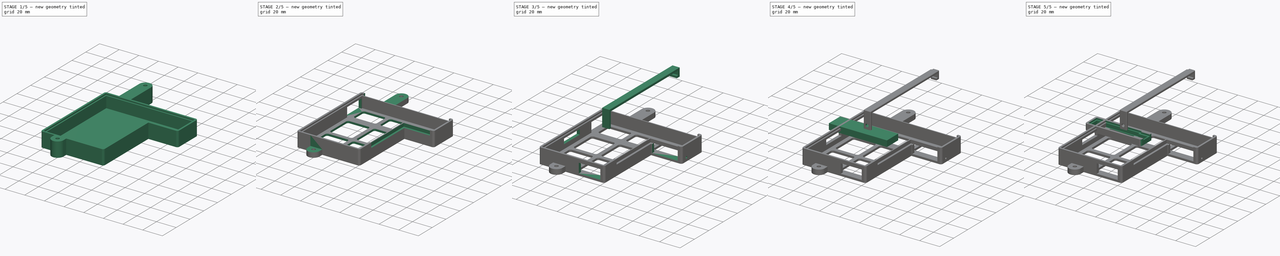
[diagram: build sequence overview — one tinted view per stage of 5, left to right]
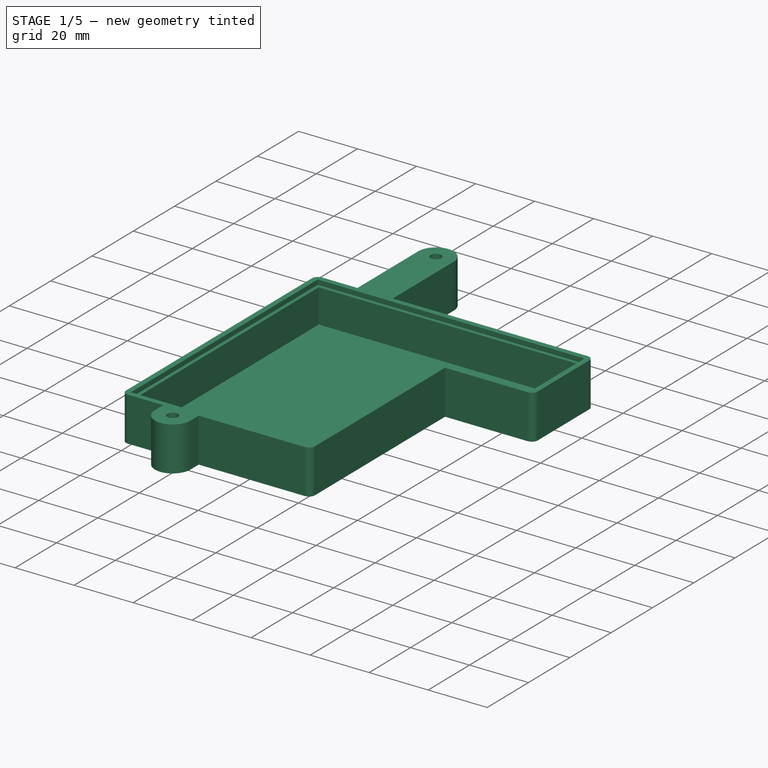
[diagram: stage 1 of 5 — iso view after this stage's code; geometry added in this stage tinted green]
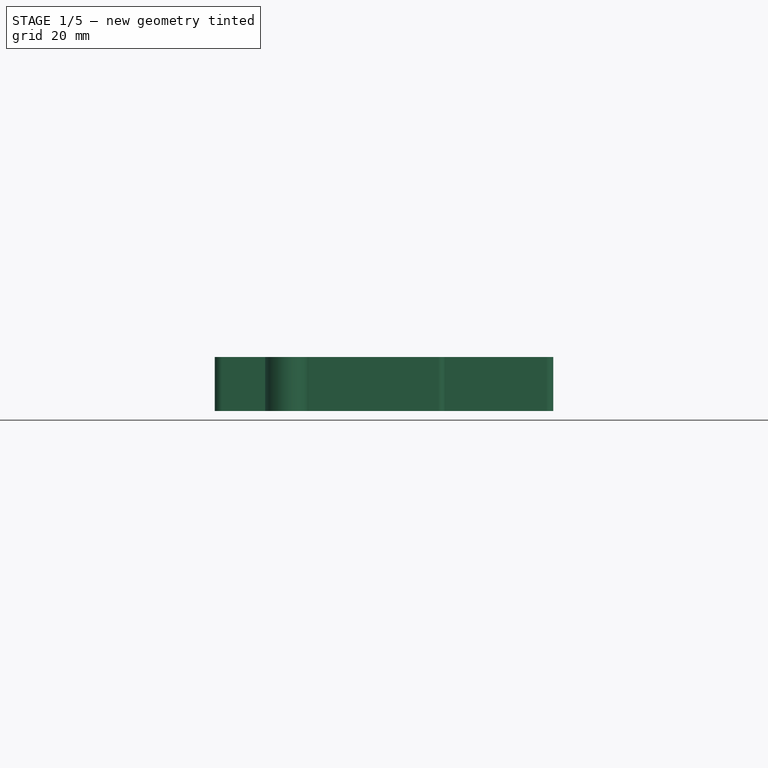
[diagram: stage 1 of 5 — front view after this stage's code; geometry added in this stage tinted green]
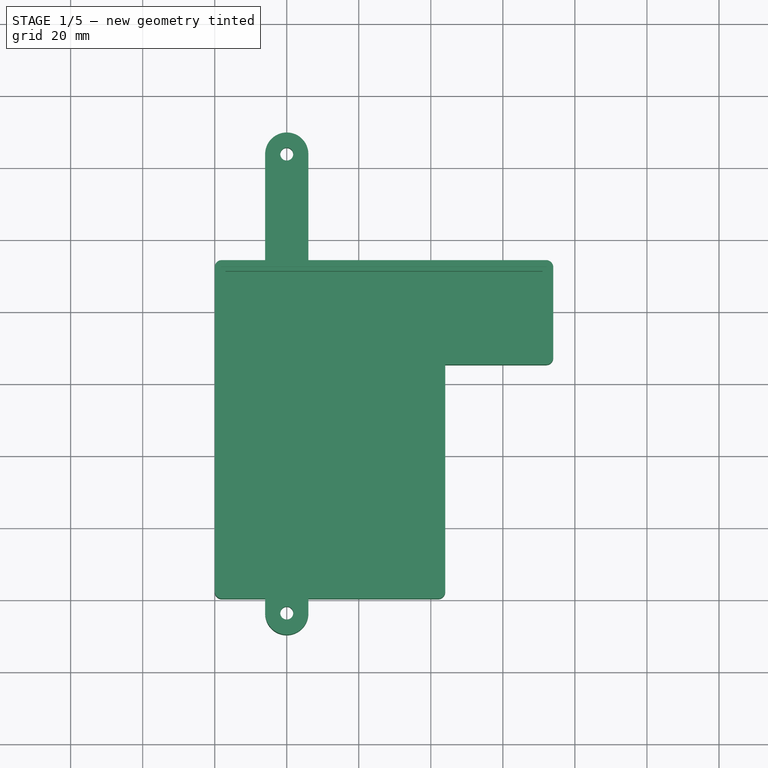
[diagram: stage 1 of 5 — top view after this stage's code; geometry added in this stage tinted green]
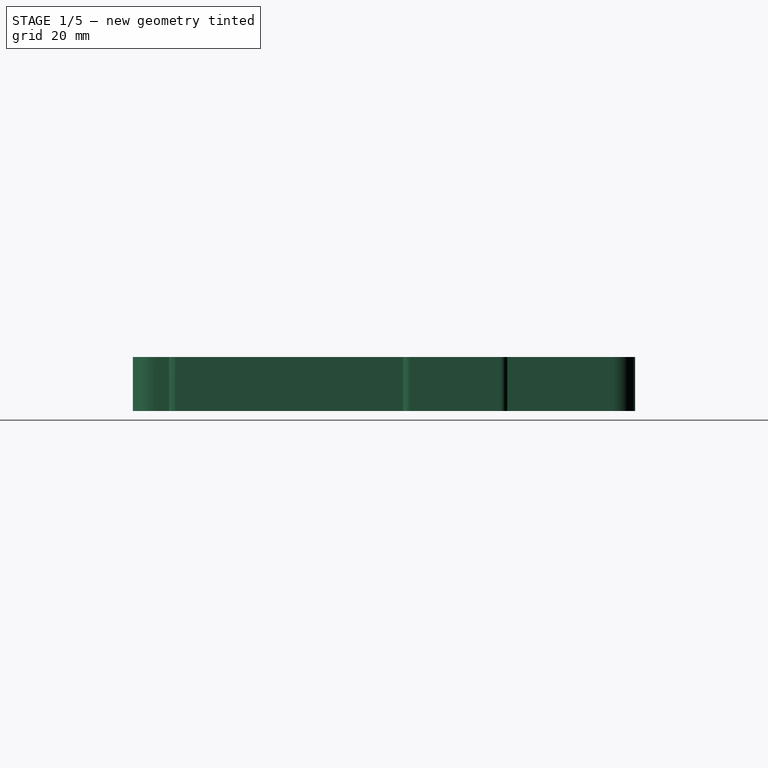
[diagram: stage 1 of 5 — right view after this stage's code; geometry added in this stage tinted green]
FCSTD DOCUMENT  (FreeCAD 1.0R38806 (Git))
Label: AuxPower1U PCBs
License: All rights reserved
LicenseURL: https://en.wikipedia.org/wiki/All_rights_reserved
objects: Sketcher::SketchObject×20, PartDesign::Pocket×17, PartDesign::Pad×3, PartDesign::Fillet×3, PartDesign::Body×3
note: 112 computed .brp shape members not serialized (recipe doc carries the construction recipe); baked Part::Feature solids carry a one-line shape summary decoded from their .brp

FEATURE [Sketcher::SketchObject] Sketch004  label="MainControllerBoxSketch"
  ArcFitTolerance = 1e-06
  AttachmentSupport = -> [XY_Plane001]
  FullyConstrained = true
  MakeInternals = false
  MapMode = 5
  sketch-geometry (25):
    g0: LineSegment StartX=-20 StartY=34.2841 StartZ=0 EndX=-20 EndY=-59.7159 EndZ=0
    g1: LineSegment [constr] StartX=-20 StartY=34.2841 StartZ=0 EndX=74 EndY=34.2841 EndZ=0
    g2: LineSegment [constr] StartX=-20 StartY=-59.7159 StartZ=0 EndX=44 EndY=-59.7159 EndZ=0
    g3: LineSegment StartX=74 StartY=34.2841 StartZ=0 EndX=74 EndY=5.2841 EndZ=0
    g4: LineSegment StartX=44 StartY=-59.7159 StartZ=0 EndX=44 EndY=5.2841 EndZ=0
    g5: LineSegment StartX=44 StartY=5.2841 StartZ=0 EndX=74 EndY=5.2841 EndZ=0
    g6: LineSegment [constr] StartX=0 StartY=63.7159 StartZ=0 EndX=0 EndY=-63.7159 EndZ=0
    g7: LineSegment [constr] StartX=0 StartY=-63.7159 StartZ=0 EndX=-6 EndY=-63.7159 EndZ=0
    g8: LineSegment StartX=-6 StartY=-63.7159 StartZ=0 EndX=-6 EndY=-59.7159 EndZ=0
    g9: Circle CenterX=0 CenterY=-63.7159 CenterZ=0 NormalX=0 NormalY=0 NormalZ=1 AngleXU=0 Radius=1.8
    g10: LineSegment [constr] StartX=0 StartY=-63.7159 StartZ=0 EndX=6 EndY=-63.7159 EndZ=0
    g11: ArcOfCircle CenterX=-1.52933e-11 CenterY=-63.7159 CenterZ=0 NormalX=0 NormalY=0 NormalZ=1 AngleXU=0 Radius=6 StartAngle=3.14159 EndAngle=6.28319
    g12: LineSegment StartX=6 StartY=-63.7159 StartZ=0 EndX=6 EndY=-59.7159 EndZ=0
    g13: LineSegment [constr] StartX=0 StartY=63.7159 StartZ=0 EndX=-6 EndY=63.7159 EndZ=0
    g14: LineSegment [constr] StartX=0 StartY=63.7159 StartZ=0 EndX=6 EndY=63.7159 EndZ=0
    g15: Circle CenterX=0 CenterY=63.7159 CenterZ=0 NormalX=0 NormalY=0 NormalZ=1 AngleXU=0 Radius=1.8
    g16: ArcOfCircle CenterX=3e-16 CenterY=63.7159 CenterZ=0 NormalX=0 NormalY=0 NormalZ=1 AngleXU=0 Radius=6 StartAngle=1e-16 EndAngle=3.14159
    g17: LineSegment [constr] StartX=-1.52933e-11 StartY=-63.7159 StartZ=0 EndX=0 EndY=-59.7159 EndZ=0
    g18: LineSegment [constr] StartX=0 StartY=-59.7159 StartZ=0 EndX=-20 EndY=-59.7159 EndZ=0
    g19: LineSegment StartX=-20 StartY=-59.7159 StartZ=0 EndX=-6 EndY=-59.7159 EndZ=0
    g20: LineSegment StartX=6 StartY=-59.7159 StartZ=0 EndX=44 EndY=-59.7159 EndZ=0
    g21: LineSegment StartX=-6 StartY=63.7159 StartZ=0 EndX=-6 EndY=34.2841 EndZ=0
    g22: LineSegment StartX=6 StartY=63.7159 StartZ=0 EndX=6 EndY=34.2841 EndZ=0
    g23: LineSegment StartX=-6 StartY=34.2841 StartZ=0 EndX=-20 EndY=34.2841 EndZ=0
    g24: LineSegment StartX=6 StartY=34.2841 StartZ=0 EndX=74 EndY=34.2841 EndZ=0
  constraints (68):
    c: Distance(g0) = 94
    c: Distance(g1) = 94
    c: Coincident(g1,g0)
    c: Distance(g2) = 64
    c: Coincident(g0,g2)
    c: Horizontal(g2,g0)
    c: Distance(g3) = 29
    c: Coincident(g3,g1)
    c: Vertical(g3,g1)
    c: Coincident(g4,g2)
    c: Coincident(g5,g4)
    c: Coincident(g5,g3)
    c: Horizontal(g4,g3)
    c: Vertical(g4,g2)
    c: DistanceY(g6,g6) = 127.432
    c: Coincident(g7,g6)
    c: Horizontal(g7)
    c: Coincident(g8,g7)
    c: Vertical(g8)
    c: Symmetric(g6,g6,g-1)
    c: Vertical(g6)
    c: Vertical(g0)
    c: Diameter(g9) = 3.6
    c: Coincident(g9,g6)
    c: Coincident(g10,g6)
    c: Horizontal(g10)
    c: DistanceX(g7,g7) = 6
    c: Equal(g10,g7)
    c: Coincident(g10,g11)
    c: Coincident(g11,g7)
    c: Horizontal(g11,g6)
    c: Coincident(g12,g10)
    c: Vertical(g12)
    c: Equal(g12,g8)
    c: Coincident(g13,g6)
    c: Horizontal(g13)
    c: Coincident(g14,g6)
    c: Horizontal(g14)
    c: Equal(g13,g14)
    c: Equal(g14,g7)
    c: Coincident(g15,g6)
    c: Equal(g15,g9)
    c: Coincident(g16,g14)
    c: Coincident(g13,g16)
    c: Horizontal(g16,g6)
    c: Coincident(g17,g11)
    c: PointOnObject(g17,g6)
    c: Equal(g17,g12)
    c: Distance(g18) = 20
    c: Coincident(g18,g17)
    c: Horizontal(g18)
    c: Horizontal(g1)
    c: Coincident(g0,g18)
    c: Coincident(g19,g0)
    c: Coincident(g19,g8)
    c: Coincident(g20,g12)
    c: Coincident(g20,g2)
    c: Coincident(g21,g13)
    c: Vertical(g21)
    c: Coincident(g22,g14)
    c: Vertical(g22)
    c: Equal(g22,g21)
    c: Horizontal(g21,g0)
    c: Coincident(g23,g21)
    c: Coincident(g23,g0)
    c: Coincident(g24,g22)
    c: Coincident(g24,g1)
    c: DistanceY(g8,g8) = 4
FEATURE [Sketcher::SketchObject] Sketch003  label="MainControllerPCBSketch"
  ArcFitTolerance = 1e-06
  AttachmentSupport = -> [XY_Plane001]
  ExternalGeometry = -> [Sketch004]
  FullyConstrained = true
  MakeInternals = false
  MapMode = 5
  sketch-geometry (8):
    g0: LineSegment StartX=-18.2 StartY=32.4841 StartZ=0 EndX=-18.2 EndY=-57.9159 EndZ=0
    g1: LineSegment StartX=-18.2 StartY=32.4841 StartZ=0 EndX=72.2 EndY=32.4841 EndZ=0
    g2: LineSegment StartX=72.2 StartY=32.4841 StartZ=0 EndX=72.2 EndY=7.2841 EndZ=0
    g3: LineSegment StartX=-18.2 StartY=-57.9159 StartZ=0 EndX=42.2 EndY=-57.9159 EndZ=0
    g4: LineSegment StartX=42.2 StartY=-57.9159 StartZ=0 EndX=42.2 EndY=7.2841 EndZ=0
    g5: LineSegment StartX=72.2 StartY=7.2841 StartZ=0 EndX=42.2 EndY=7.2841 EndZ=0
    g6: LineSegment [constr] StartX=-20 StartY=34.2841 StartZ=0 EndX=-18.2 EndY=32.4841 EndZ=0
    g7: LineSegment [constr] StartX=-18.2 StartY=-57.9159 StartZ=0 EndX=-20 EndY=-59.7159 EndZ=0
  constraints (22):
    c: Distance(g0) = 90.4
    c: Distance(g1) = 90.4
    c: Coincident(g0,g1)
    c: Distance(g2) = 25.2
    c: Coincident(g2,g1)
    c: Vertical(g2,g1)
    c: Distance(g3) = 60.4
    c: Coincident(g3,g0)
    c: Horizontal(g3,g0)
    c: Coincident(g4,g3)
    c: Coincident(g5,g2)
    c: Vertical(g5,g3)
    c: Coincident(g5,g4)
    c: Horizontal(g4,g2)
    c: Horizontal(g1)
    c: Vertical(g0)
    c: Coincident(g6,g-3)
    c: Coincident(g0,g6)
    c: Coincident(g7,g0)
    c: Coincident(g7,g-3)
    c: Angle(g6) = -0.785398
    c: Equal(g6,g7)
FEATURE [Sketcher::SketchObject] Sketch005  label="MainControllerEdgeSketch"
  ArcFitTolerance = 1e-06
  AttachmentSupport = -> [XY_Plane001]
  ExternalGeometry = -> [Sketch004]
  FullyConstrained = true
  MakeInternals = false
  MapMode = 5
  sketch-geometry (8):
    g0: LineSegment StartX=-17 StartY=31.2841 StartZ=0 EndX=-17 EndY=-56.7159 EndZ=0
    g1: LineSegment StartX=-17 StartY=31.2841 StartZ=0 EndX=71 EndY=31.2841 EndZ=0
    g2: LineSegment StartX=-17 StartY=-56.7159 StartZ=0 EndX=41 EndY=-56.7159 EndZ=0
    g3: LineSegment StartX=71 StartY=31.2841 StartZ=0 EndX=71 EndY=8.2841 EndZ=0
    g4: LineSegment StartX=41 StartY=-56.7159 StartZ=0 EndX=41 EndY=8.2841 EndZ=0
    g5: LineSegment StartX=71 StartY=8.2841 StartZ=0 EndX=41 EndY=8.2841 EndZ=0
    g6: LineSegment [constr] StartX=-20 StartY=34.2841 StartZ=0 EndX=-20 EndY=31.2841 EndZ=0
    g7: LineSegment [constr] StartX=-20 StartY=31.2841 StartZ=0 EndX=-17 EndY=31.2841 EndZ=0
  constraints (23):
    c: Distance(g0) = 88
    c: Distance(g1) = 88
    c: Coincident(g1,g0)
    c: Distance(g2) = 58
    c: Coincident(g2,g0)
    c: Horizontal(g2)
    c: Distance(g3) = 23
    c: Coincident(g3,g1)
    c: Vertical(g3)
    c: Coincident(g4,g2)
    c: Coincident(g5,g3)
    c: Coincident(g5,g4)
    c: Horizontal(g3,g4)
    c: Vertical(g2,g4)
    c: Vertical(g0)
    c: Horizontal(g1)
    c: Distance(g6) = 3
    c: Coincident(g6,g-3)
    c: Vertical(g6)
    c: Coincident(g7,g6)
    c: Horizontal(g7)
    c: Equal(g6,g7)
    c: Coincident(g0,g7)
FEATURE [PartDesign::Pad] Pad001  label="MainControllerBoxPad"
  Direction = (0,0,1)
  Length = 15
  Length2 = 10
  Profile = -> Sketch004
  ReferenceAxis = -> Sketch004 [N_Axis]
  Refine = true
  Reversed = true
  Suppressed = false
  Type = 0
FEATURE [PartDesign::Pocket] Pocket002  label="MainControllerEdgePocket"
  BaseFeature = -> Pad001
  Direction = (0,0,-1)
  Length = 13
  Length2 = 5
  Profile = -> Sketch005
  ReferenceAxis = -> Sketch005 [N_Axis]
  Refine = true
  Suppressed = false
  Type = 0
FEATURE [PartDesign::Pocket] Pocket003  label="MainControllerPCBPocket"
  BaseFeature = -> Pocket002
  Direction = (0,0,-1)
  Length = 1.6
  Length2 = 5
  Profile = -> Sketch003
  ReferenceAxis = -> Sketch003 [N_Axis]
  Refine = true
  Suppressed = false
  Type = 0
FEATURE [Sketcher::SketchObject] Sketch006  label="MainControllerHoleSketch"
  ArcFitTolerance = 1e-06
  AttachmentSupport = -> [Pocket003]
  ExternalGeometry = -> [Sketch004,Pocket003]
  FullyConstrained = true
  MakeInternals = false
  MapMode = 5
  Placement = pos=(0,0,-15) rot=(1,0,0;3.14159rad)
  sketch-geometry (2):
    g0: Circle CenterX=0 CenterY=-63.7159 CenterZ=0 NormalX=0 NormalY=0 NormalZ=1 AngleXU=0 Radius=4
    g1: Circle CenterX=0 CenterY=63.7159 CenterZ=0 NormalX=0 NormalY=0 NormalZ=1 AngleXU=0 Radius=4
  constraints (4):
    c: Diameter(g0) = 8
    c: Equal(g1,g0)
    c: Coincident(g0,g-3)
    c: Coincident(g1,g-4)
FEATURE [PartDesign::Pocket] Pocket004  label="MainControllerHolePocket"
  BaseFeature = -> Pocket003
  Direction = (0,0,1)
  Length = 4
  Length2 = 5
  Profile = -> Sketch006
  ReferenceAxis = -> Sketch006 [N_Axis]
  Refine = true
  Suppressed = false
  Type = 0
FEATURE [PartDesign::Fillet] Fillet001
  Base = -> Pocket004 [Edge44,Edge46,Edge49,Edge45,Edge43]
  BaseFeature = -> Pocket004
  Radius = 2
  Refine = true
  SupportTransform = false
  Suppressed = false
  UseAllEdges = false
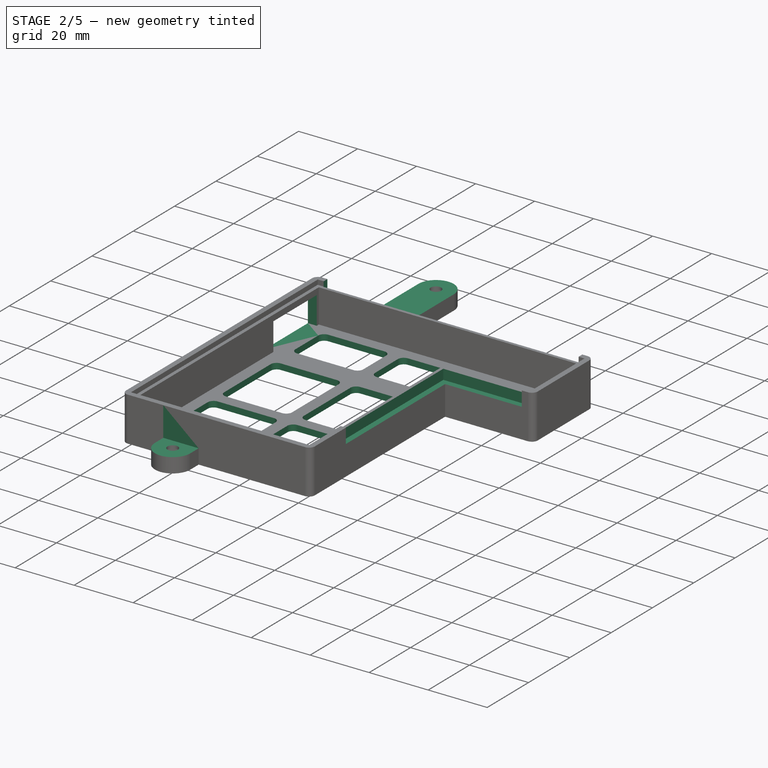
[diagram: stage 2 of 5 — iso view after this stage's code; geometry added in this stage tinted green]
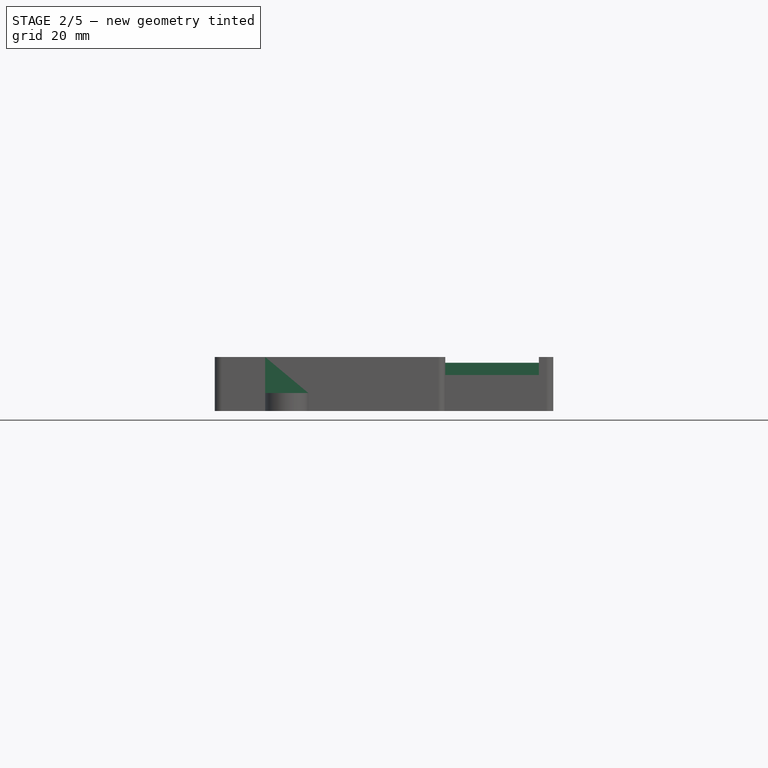
[diagram: stage 2 of 5 — front view after this stage's code; geometry added in this stage tinted green]
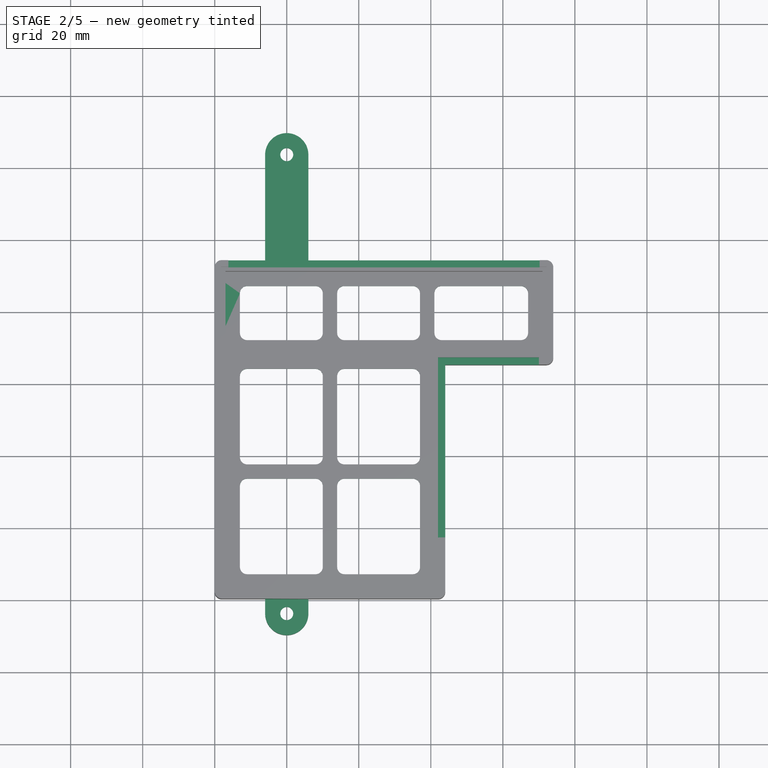
[diagram: stage 2 of 5 — top view after this stage's code; geometry added in this stage tinted green]
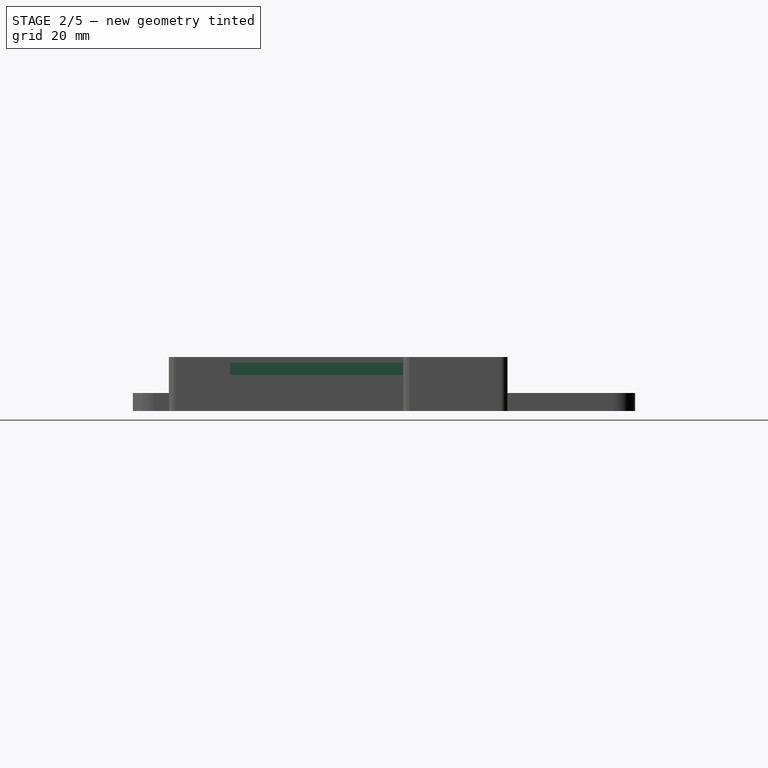
[diagram: stage 2 of 5 — right view after this stage's code; geometry added in this stage tinted green]
FEATURE [Sketcher::SketchObject] Sketch008  label="MainControllerFingerHoleSketch"
  ArcFitTolerance = 1e-06
  AttachmentSupport = -> [XY_Plane001]
  ExternalGeometry = -> [Fillet001]
  FullyConstrained = true
  MakeInternals = false
  MapMode = 5
  sketch-geometry (94):
    g0: LineSegment [constr] StartX=-17 StartY=-56.7159 StartZ=0 EndX=-13 EndY=-52.7159 EndZ=0
    g1: LineSegment [constr] StartX=41 StartY=-56.7159 StartZ=0 EndX=37 EndY=-52.7159 EndZ=0
    g2: LineSegment [constr] StartX=-17 StartY=31.2841 StartZ=0 EndX=-13 EndY=27.2841 EndZ=0
    g3: LineSegment [constr] StartX=41 StartY=8.2841 StartZ=0 EndX=37 EndY=12.2841 EndZ=0
    g4: LineSegment [constr] StartX=71 StartY=31.2841 StartZ=0 EndX=67 EndY=27.2841 EndZ=0
    g5: LineSegment [constr] StartX=71 StartY=8.2841 StartZ=0 EndX=67 EndY=12.2841 EndZ=0
    g6: LineSegment StartX=67 StartY=14.2841 StartZ=0 EndX=67 EndY=25.2841 EndZ=0
    g7: LineSegment StartX=-13 StartY=25.2841 StartZ=0 EndX=-13 EndY=14.2841 EndZ=0
    g8: LineSegment [constr] StartX=41 StartY=8.2841 StartZ=0 EndX=37 EndY=4.2841 EndZ=0
    g9: LineSegment StartX=-11 StartY=-52.7159 StartZ=0 EndX=8 EndY=-52.7159 EndZ=0
    g10: LineSegment StartX=35 StartY=-52.7159 StartZ=0 EndX=16 EndY=-52.7159 EndZ=0
    g11: LineSegment [constr] StartX=10 StartY=-52.7159 StartZ=0 EndX=14 EndY=-52.7159 EndZ=0
    g12: LineSegment StartX=-11 StartY=4.2841 StartZ=0 EndX=8 EndY=4.2841 EndZ=0
    g13: LineSegment StartX=35 StartY=4.2841 StartZ=0 EndX=16 EndY=4.2841 EndZ=0
    g14: LineSegment StartX=-11 StartY=12.2841 StartZ=0 EndX=8 EndY=12.2841 EndZ=0
    g15: LineSegment StartX=-11 StartY=27.2841 StartZ=0 EndX=8 EndY=27.2841 EndZ=0
    g16: LineSegment StartX=10 StartY=25.2841 StartZ=0 EndX=10 EndY=14.2841 EndZ=0
    g17: LineSegment StartX=35 StartY=12.2841 StartZ=0 EndX=16 EndY=12.2841 EndZ=0
    g18: LineSegment StartX=14 StartY=14.2841 StartZ=0 EndX=14 EndY=25.2841 EndZ=0
    g19: LineSegment StartX=16 StartY=27.2841 StartZ=0 EndX=35 EndY=27.2841 EndZ=0
    g20: LineSegment StartX=37 StartY=25.2841 StartZ=0 EndX=37 EndY=14.2841 EndZ=0
    g21: LineSegment [constr] StartX=37 StartY=27.2841 StartZ=0 EndX=41 EndY=27.2841 EndZ=0
    g22: LineSegment StartX=43 StartY=27.2841 StartZ=0 EndX=65 EndY=27.2841 EndZ=0
    g23: LineSegment StartX=65 StartY=12.2841 StartZ=0 EndX=43 EndY=12.2841 EndZ=0
    g24: LineSegment StartX=-13 StartY=2.2841 StartZ=0 EndX=-13 EndY=-20.2159 EndZ=0
    g25: LineSegment StartX=-13 StartY=-50.7159 StartZ=0 EndX=-13 EndY=-28.2159 EndZ=0
    g26: LineSegment [constr] StartX=-13 StartY=-22.2159 StartZ=0 EndX=-13 EndY=-26.2159 EndZ=0
    g27: LineSegment StartX=-11 StartY=-22.2159 StartZ=0 EndX=8 EndY=-22.2159 EndZ=0
    g28: LineSegment StartX=10 StartY=-20.2159 StartZ=0 EndX=10 EndY=2.2841 EndZ=0
    g29: LineSegment StartX=14 StartY=2.2841 StartZ=0 EndX=14 EndY=-20.2159 EndZ=0
    g30: LineSegment StartX=16 StartY=-22.2159 StartZ=0 EndX=35 EndY=-22.2159 EndZ=0
    g31: LineSegment StartX=37 StartY=2.2841 StartZ=0 EndX=37 EndY=-20.2159 EndZ=0
    g32: LineSegment StartX=37 StartY=-50.7159 StartZ=0 EndX=37 EndY=-28.2159 EndZ=0
    g33: LineSegment StartX=35 StartY=-26.2159 StartZ=0 EndX=16 EndY=-26.2159 EndZ=0
    g34: LineSegment StartX=14 StartY=-28.2159 StartZ=0 EndX=14 EndY=-50.7159 EndZ=0
    g35: LineSegment StartX=10 StartY=-50.7159 StartZ=0 EndX=10 EndY=-28.2159 EndZ=0
    g36: LineSegment StartX=8 StartY=-26.2159 StartZ=0 EndX=-11 EndY=-26.2159 EndZ=0
    g37: LineSegment StartX=41 StartY=25.2841 StartZ=0 EndX=41 EndY=14.2841 EndZ=0
    g38: ArcOfCircle CenterX=-11 CenterY=25.2841 CenterZ=0 NormalX=0 NormalY=0 NormalZ=1 AngleXU=0 Radius=2 StartAngle=1.5708 EndAngle=3.14159
    g39: GeomPoint [constr] X=-13 Y=27.2841 Z=0
    g40: ArcOfCircle CenterX=-11 CenterY=14.2841 CenterZ=0 NormalX=0 NormalY=0 NormalZ=1 AngleXU=0 Radius=2 StartAngle=3.14159 EndAngle=4.71239
    g41: GeomPoint [constr] X=-13 Y=12.2841 Z=0
    g42: ArcOfCircle CenterX=8 CenterY=14.2841 CenterZ=0 NormalX=0 NormalY=0 NormalZ=1 AngleXU=0 Radius=2 StartAngle=4.71239 EndAngle=6.28319
    g43: GeomPoint [constr] X=10 Y=12.2841 Z=0
    g44: ArcOfCircle CenterX=8 CenterY=25.2841 CenterZ=0 NormalX=0 NormalY=0 NormalZ=1 AngleXU=0 Radius=2 StartAngle=0 EndAngle=1.5708
    g45: GeomPoint [constr] X=10 Y=27.2841 Z=0
    g46: ArcOfCircle CenterX=16 CenterY=25.2841 CenterZ=0 NormalX=0 NormalY=0 NormalZ=1 AngleXU=0 Radius=2 StartAngle=1.5708 EndAngle=3.14159
    g47: GeomPoint [constr] X=14 Y=27.2841 Z=0
    g48: ArcOfCircle CenterX=16 CenterY=14.2841 CenterZ=0 NormalX=0 NormalY=0 NormalZ=1 AngleXU=0 Radius=2 StartAngle=3.14159 EndAngle=4.71239
    g49: GeomPoint [constr] X=14 Y=12.2841 Z=0
    g50: ArcOfCircle CenterX=35 CenterY=14.2841 CenterZ=0 NormalX=0 NormalY=0 NormalZ=1 AngleXU=0 Radius=2 StartAngle=4.71239 EndAngle=6.28319
    g51: GeomPoint [constr] X=37 Y=12.2841 Z=0
    g52: ArcOfCircle CenterX=35 CenterY=25.2841 CenterZ=0 NormalX=0 NormalY=0 NormalZ=1 AngleXU=0 Radius=2 StartAngle=0 EndAngle=1.5708
    g53: GeomPoint [constr] X=37 Y=27.2841 Z=0
    g54: ArcOfCircle CenterX=43 CenterY=25.2841 CenterZ=0 NormalX=0 NormalY=0 NormalZ=1 AngleXU=0 Radius=2 StartAngle=1.5708 EndAngle=3.14159
    g55: GeomPoint [constr] X=41 Y=27.2841 Z=0
    g56: ArcOfCircle CenterX=65 CenterY=25.2841 CenterZ=0 NormalX=0 NormalY=0 NormalZ=1 AngleXU=0 Radius=2 StartAngle=4e-16 EndAngle=1.5708
    g57: GeomPoint [constr] X=67 Y=27.2841 Z=0
    g58: ArcOfCircle CenterX=65 CenterY=14.2841 CenterZ=0 NormalX=0 NormalY=0 NormalZ=1 AngleXU=0 Radius=2 StartAngle=4.71239 EndAngle=6.28319
    g59: GeomPoint [constr] X=67 Y=12.2841 Z=0
    g60: ArcOfCircle CenterX=43 CenterY=14.2841 CenterZ=0 NormalX=0 NormalY=0 NormalZ=1 AngleXU=0 Radius=2 StartAngle=3.14159 EndAngle=4.71239
    g61: GeomPoint [constr] X=41 Y=12.2841 Z=0
    g62: ArcOfCircle CenterX=35 CenterY=2.2841 CenterZ=0 NormalX=0 NormalY=0 NormalZ=1 AngleXU=0 Radius=2 StartAngle=0 EndAngle=1.5708
    g63: GeomPoint [constr] X=37 Y=4.2841 Z=0
    g64: ArcOfCircle CenterX=35 CenterY=-20.2159 CenterZ=0 NormalX=0 NormalY=0 NormalZ=1 AngleXU=0 Radius=2 StartAngle=4.71239 EndAngle=6.28319
    g65: GeomPoint [constr] X=37 Y=-22.2159 Z=0
    g66: ArcOfCircle CenterX=16 CenterY=-20.2159 CenterZ=0 NormalX=0 NormalY=0 NormalZ=1 AngleXU=0 Radius=2 StartAngle=3.14159 EndAngle=4.71239
    g67: GeomPoint [constr] X=14 Y=-22.2159 Z=0
    g68: ArcOfCircle CenterX=16 CenterY=2.2841 CenterZ=0 NormalX=0 NormalY=0 NormalZ=1 AngleXU=0 Radius=2 StartAngle=1.5708 EndAngle=3.14159
    g69: GeomPoint [constr] X=14 Y=4.2841 Z=0
    g70: ArcOfCircle CenterX=8 CenterY=2.2841 CenterZ=0 NormalX=0 NormalY=0 NormalZ=1 AngleXU=0 Radius=2 StartAngle=0 EndAngle=1.5708
    g71: GeomPoint [constr] X=10 Y=4.2841 Z=0
    g72: ArcOfCircle CenterX=-11 CenterY=2.2841 CenterZ=0 NormalX=0 NormalY=0 NormalZ=1 AngleXU=0 Radius=2 StartAngle=1.5708 EndAngle=3.14159
    g73: GeomPoint [constr] X=-13 Y=4.2841 Z=0
    g74: ArcOfCircle CenterX=-11 CenterY=-20.2159 CenterZ=0 NormalX=0 NormalY=0 NormalZ=1 AngleXU=0 Radius=2 StartAngle=3.14159 EndAngle=4.71239
    g75: GeomPoint [constr] X=-13 Y=-22.2159 Z=0
    g76: ArcOfCircle CenterX=8 CenterY=-20.2159 CenterZ=0 NormalX=0 NormalY=0 NormalZ=1 AngleXU=0 Radius=2 StartAngle=4.71239 EndAngle=6.28319
    g77: GeomPoint [constr] X=10 Y=-22.2159 Z=0
    g78: ArcOfCircle CenterX=8 CenterY=-28.2159 CenterZ=0 NormalX=0 NormalY=0 NormalZ=1 AngleXU=0 Radius=2 StartAngle=0 EndAngle=1.5708
    g79: GeomPoint [constr] X=10 Y=-26.2159 Z=0
    g80: ArcOfCircle CenterX=-11 CenterY=-28.2159 CenterZ=0 NormalX=0 NormalY=0 NormalZ=1 AngleXU=0 Radius=2 StartAngle=1.5708 EndAngle=3.14159
    g81: GeomPoint [constr] X=-13 Y=-26.2159 Z=0
    g82: ArcOfCircle CenterX=-11 CenterY=-50.7159 CenterZ=0 NormalX=0 NormalY=0 NormalZ=1 AngleXU=0 Radius=2 StartAngle=3.14159 EndAngle=4.71239
    g83: GeomPoint [constr] X=-13 Y=-52.7159 Z=0
    g84: ArcOfCircle CenterX=8 CenterY=-50.7159 CenterZ=0 NormalX=0 NormalY=0 NormalZ=1 AngleXU=0 Radius=2 StartAngle=4.71239 EndAngle=6.28319
    g85: GeomPoint [constr] X=10 Y=-52.7159 Z=0
    g86: ArcOfCircle CenterX=16 CenterY=-50.7159 CenterZ=0 NormalX=0 NormalY=0 NormalZ=1 AngleXU=0 Radius=2 StartAngle=3.14159 EndAngle=4.71239
    g87: GeomPoint [constr] X=14 Y=-52.7159 Z=0
    g88: ArcOfCircle CenterX=35 CenterY=-50.7159 CenterZ=0 NormalX=0 NormalY=0 NormalZ=1 AngleXU=0 Radius=2 StartAngle=4.71239 EndAngle=6.28319
    g89: GeomPoint [constr] X=37 Y=-52.7159 Z=0
    g90: ArcOfCircle CenterX=35 CenterY=-28.2159 CenterZ=0 NormalX=0 NormalY=0 NormalZ=1 AngleXU=0 Radius=2 StartAngle=3e-16 EndAngle=1.5708
    g91: GeomPoint [constr] X=37 Y=-26.2159 Z=0
    g92: ArcOfCircle CenterX=16 CenterY=-28.2159 CenterZ=0 NormalX=0 NormalY=0 NormalZ=1 AngleXU=0 Radius=2 StartAngle=1.5708 EndAngle=3.14159
    g93: GeomPoint [constr] X=14 Y=-26.2159 Z=0
  constraints (217):
    c: Coincident(g0,g-5)
    c: Coincident(g1,g-4)
    c: Coincident(g2,g-5)
    c: Equal(g0,g1)
    c: Equal(g2,g0)
    c: Coincident(g3,g-6)
    c: Coincident(g4,g-8)
    c: Coincident(g5,g-7)
    c: Equal(g5,g2)
    c: Equal(g3,g2)
    c: Equal(g4,g2)
    c: Horizontal(g5,g3)
    c: Vertical(g5,g4)
    c: Horizontal(g4,g2)
    c: Vertical(g1,g3)
    c: Vertical(g0,g2)
    c: Angle(g0) = 0.785398
    c: DistanceX(g0,g0) = 4
    c: Coincident(g59,g5)
    c: Coincident(g57,g4)
    c: Vertical(g41,g2)
    c: Coincident(g39,g2)
    c: Coincident(g8,g3)
    c: Vertical(g8,g3)
    c: Equal(g3,g8)
    c: Vertical(g73,g41)
    c: Coincident(g83,g0)
    c: Coincident(g89,g1)
    c: Horizontal(g87,g85)
    c: Horizontal(g85,g0)
    c: Coincident(g11,g85)
    c: Coincident(g11,g87)
    c: DistanceX(g11,g11) = 4
    c: Coincident(g63,g8)
    c: Vertical(g69,g87)
    c: Horizontal(g69,g71)
    c: Vertical(g71,g85)
    c: Horizontal(g71,g73)
    c: Horizontal(g14)
    c: Horizontal(g41,g3)
    c: Vertical(g43,g71)
    c: Horizontal(g15)
    c: Vertical(g45,g43)
    c: Coincident(g51,g3)
    c: Horizontal(g17)
    c: Vertical(g18)
    c: Vertical(g53,g3)
    c: Vertical(g69,g49)
    c: Horizontal(g47,g45)
    c: Horizontal(g53,g47)
    c: Coincident(g21,g53)
    c: Equal(g21,g11)
    c: Horizontal(g22)
    c: Horizontal(g23)
    c: Coincident(g26,g75)
    c: Coincident(g26,g81)
    c: Equal(g26,g11)
    c: Vertical(g81,g0)
    c: Vertical(g73,g75)
    c: Vertical(g28)
    c: Horizontal(g30)
    c: Vertical(g32)
    c: Vertical(g34)
    c: Horizontal(g81,g79)
    c: Horizontal(g79,g93)
    c: Horizontal(g93,g91)
    c: Horizontal(g77,g75)
    c: Horizontal(g67,g77)
    c: Vertical(g67,g93)
    c: Vertical(g65,g91)
    c: Vertical(g79,g77)
    c: Vertical(g55,g21)
    c: Vertical(g61,g55)
    c: Horizontal(g21,g55)
    c: PointOnObject(g39,g15)
    c: PointOnObject(g39,g7)
    c: Tangent(g15,g38) = 1.5708
    c: Tangent(g7,g38) = -1.5708
    c: PointOnObject(g41,g14)
    c: PointOnObject(g41,g7)
    c: Tangent(g14,g40) = -1.5708
    c: Tangent(g7,g40) = -1.5708
    c: PointOnObject(g43,g16)
    c: PointOnObject(g43,g14)
    c: Tangent(g16,g42) = 1.5708
    c: Tangent(g14,g42) = -1.5708
    c: PointOnObject(g45,g15)
    c: PointOnObject(g45,g16)
    c: Tangent(g15,g44) = 1.5708
    c: Tangent(g16,g44) = 1.5708
    c: PointOnObject(g47,g19)
    c: PointOnObject(g47,g18)
    c: Tangent(g19,g46) = 1.5708
    c: Tangent(g18,g46) = 1.5708
    c: PointOnObject(g49,g17)
    c: PointOnObject(g49,g18)
    c: Tangent(g17,g48) = 1.5708
    c: Tangent(g18,g48) = 1.5708
    c: PointOnObject(g51,g20)
    c: PointOnObject(g51,g17)
    c: Tangent(g20,g50) = 1.5708
    c: Tangent(g17,g50) = 1.5708
    c: PointOnObject(g53,g19)
    c: PointOnObject(g53,g20)
    c: Tangent(g19,g52) = 1.5708
    c: Tangent(g20,g52) = 1.5708
    c: PointOnObject(g55,g37)
    c: PointOnObject(g55,g22)
    c: Tangent(g37,g54) = -1.5708
    c: Tangent(g22,g54) = 1.5708
    c: PointOnObject(g57,g22)
    c: PointOnObject(g57,g6)
    c: Tangent(g22,g56) = 1.5708
    c: Tangent(g6,g56) = -1.5708
    c: PointOnObject(g59,g6)
    c: PointOnObject(g59,g23)
    c: Tangent(g6,g58) = -1.5708
    c: Tangent(g23,g58) = 1.5708
    c: PointOnObject(g61,g23)
    c: PointOnObject(g61,g37)
    c: Tangent(g23,g60) = 1.5708
    c: Tangent(g37,g60) = -1.5708
    c: PointOnObject(g63,g31)
    c: PointOnObject(g63,g13)
    c: Tangent(g31,g62) = 1.5708
    c: Tangent(g13,g62) = -1.5708
    c: PointOnObject(g65,g31)
    c: PointOnObject(g65,g30)
    c: Tangent(g31,g64) = 1.5708
    c: Tangent(g30,g64) = -1.5708
    c: PointOnObject(g67,g29)
    c: PointOnObject(g67,g30)
    c: Tangent(g29,g66) = -1.5708
    c: Tangent(g30,g66) = -1.5708
    c: PointOnObject(g69,g13)
    c: PointOnObject(g69,g29)
    c: Tangent(g13,g68) = -1.5708
    c: Tangent(g29,g68) = -1.5708
    c: PointOnObject(g71,g28)
    c: PointOnObject(g71,g12)
    c: Tangent(g28,g70) = -1.5708
    c: Tangent(g12,g70) = 1.5708
    c: PointOnObject(g73,g12)
    c: PointOnObject(g73,g24)
    c: Tangent(g12,g72) = 1.5708
    c: Tangent(g24,g72) = -1.5708
    c: PointOnObject(g75,g27)
    c: PointOnObject(g75,g24)
    c: Tangent(g27,g74) = -1.5708
    c: Tangent(g24,g74) = -1.5708
    c: PointOnObject(g77,g28)
    c: PointOnObject(g77,g27)
    c: Tangent(g28,g76) = -1.5708
    c: Tangent(g27,g76) = -1.5708
    c: PointOnObject(g79,g35)
    c: PointOnObject(g79,g36)
    c: Tangent(g35,g78) = -1.5708
    c: Tangent(g36,g78) = -1.5708
    c: PointOnObject(g81,g36)
    c: PointOnObject(g81,g25)
    c: Tangent(g36,g80) = -1.5708
    c: Tangent(g25,g80) = 1.5708
    c: PointOnObject(g83,g9)
    c: PointOnObject(g83,g25)
    c: Tangent(g9,g82) = -1.5708
    c: Tangent(g25,g82) = 1.5708
    c: PointOnObject(g85,g9)
    c: PointOnObject(g85,g35)
    c: Tangent(g9,g84) = -1.5708
    c: Tangent(g35,g84) = -1.5708
    c: PointOnObject(g87,g34)
    c: PointOnObject(g87,g10)
    c: Tangent(g34,g86) = -1.5708
    c: Tangent(g10,g86) = 1.5708
    c: PointOnObject(g89,g32)
    c: PointOnObject(g89,g10)
    c: Tangent(g32,g88) = -1.5708
    c: Tangent(g10,g88) = 1.5708
    c: PointOnObject(g91,g32)
    c: PointOnObject(g91,g33)
    c: Tangent(g32,g90) = -1.5708
    c: Tangent(g33,g90) = -1.5708
    c: Radius(g82) = 2
    c: Equal(g84,g82)
    c: Equal(g84,g86)
    c: Equal(g88,g86)
    c: Equal(g9,g10)
    c: Equal(g24,g25)
    c: Equal(g80,g82)
    c: Equal(g80,g74)
    c: Equal(g76,g78)
    c: Equal(g78,g80)
    c: Equal(g66,g76)
    c: Equal(g66,g90)
    c: Equal(g90,g64)
    c: PointOnObject(g93,g33)
    c: PointOnObject(g93,g34)
    c: Tangent(g33,g92) = -1.5708
    c: Tangent(g34,g92) = -1.5708
    c: Equal(g92,g78)
    c: Equal(g72,g74)
    c: Equal(g72,g70)
    c: Equal(g70,g68)
    c: Equal(g68,g62)
    c: Equal(g72,g40)
    c: Equal(g40,g38)
    c: Equal(g38,g44)
    c: Equal(g44,g42)
    c: Equal(g48,g46)
    c: Equal(g46,g52)
    c: Equal(g52,g50)
    c: Equal(g50,g68)
    c: Equal(g60,g54)
    c: Equal(g54,g52)
    c: Equal(g52,g56)
    c: Equal(g56,g58)
    c: Horizontal(g13,g13)
FEATURE [PartDesign::Pocket] Pocket006  label="MainControllerFingerHolePocket"
  BaseFeature = -> Fillet001
  Direction = (0,0,-1)
  Length = 5
  Length2 = 5
  Profile = -> Sketch008
  ReferenceAxis = -> Sketch008 [N_Axis]
  Refine = true
  Suppressed = false
  Type = 1
FEATURE [Sketcher::SketchObject] Sketch009  label="BossReductionSketch"
  ArcFitTolerance = 1e-06
  AttachmentSupport = -> [XY_Plane001]
  ExternalGeometry = -> [Sketch004]
  FullyConstrained = true
  MakeInternals = false
  MapMode = 5
  sketch-geometry (8):
    g0: LineSegment StartX=-6 StartY=-63.7159 StartZ=0 EndX=-6 EndY=-59.7159 EndZ=0
    g1: LineSegment StartX=6 StartY=-63.7159 StartZ=0 EndX=6 EndY=-59.7159 EndZ=0
    g2: ArcOfCircle CenterX=-1.52933e-11 CenterY=-63.7159 CenterZ=0 NormalX=0 NormalY=0 NormalZ=1 AngleXU=0 Radius=6 StartAngle=3.14159 EndAngle=6.28319
    g3: LineSegment StartX=-6 StartY=-59.7159 StartZ=0 EndX=6 EndY=-59.7159 EndZ=0
    g4: ArcOfCircle CenterX=3e-16 CenterY=63.7159 CenterZ=0 NormalX=0 NormalY=0 NormalZ=1 AngleXU=0 Radius=6 StartAngle=0 EndAngle=3.1416
    g5: LineSegment StartX=-6 StartY=63.7159 StartZ=0 EndX=-6 EndY=34.2841 EndZ=0
    g6: LineSegment StartX=6 StartY=63.7159 StartZ=0 EndX=6 EndY=34.2841 EndZ=0
    g7: LineSegment StartX=-6 StartY=34.2841 StartZ=0 EndX=6 EndY=34.2841 EndZ=0
  constraints (21):
    c: DistanceY(g0,g0) = 4
    c: Coincident(g0,g-3)
    c: Equal(g1,g0)
    c: Coincident(g1,g-3)
    c: Coincident(g2,g-3)
    c: Coincident(g2,g0)
    c: Vertical(g1)
    c: Vertical(g0)
    c: Coincident(g3,g0)
    c: Coincident(g3,g1)
    c: Coincident(g4,g-4)
    c: Vertical(g4,g-4)
    c: Horizontal(g2,g1)
    c: Coincident(g5,g4)
    c: Coincident(g5,g-6)
    c: Vertical(g5)
    c: Coincident(g6,g4)
    c: Coincident(g6,g-5)
    c: Horizontal(g4,g-5)
    c: Coincident(g7,g5)
    c: Coincident(g7,g6)
FEATURE [PartDesign::Pocket] Pocket007  label="BossReductionPocket"
  BaseFeature = -> Pocket006
  Direction = (0,0,-1)
  Length = 10
  Length2 = 5
  Profile = -> Sketch009
  ReferenceAxis = -> Sketch009 [N_Axis]
  Refine = true
  Suppressed = false
  Type = 0
FEATURE [Sketcher::SketchObject] Sketch010  label="EdgeReductionSketch"
  ArcFitTolerance = 1e-06
  AttachmentSupport = -> [XY_Plane001]
  ExternalGeometry = -> [Pocket007]
  FullyConstrained = true
  MakeInternals = false
  MapMode = 5
  sketch-geometry (18):
    g0: LineSegment [constr] StartX=-18.2 StartY=32.4841 StartZ=0 EndX=-16.2 EndY=32.4841 EndZ=0
    g1: LineSegment [constr] StartX=72.2 StartY=32.4841 StartZ=0 EndX=70.2 EndY=32.4841 EndZ=0
    g2: LineSegment [constr] StartX=-16.2 StartY=32.4841 StartZ=0 EndX=70.2 EndY=32.4841 EndZ=0
    g3: LineSegment StartX=70.2 StartY=32.4841 StartZ=0 EndX=70.2 EndY=34.4841 EndZ=0
    g4: LineSegment StartX=70.2 StartY=34.4841 StartZ=0 EndX=-16.2 EndY=34.4841 EndZ=0
    g5: LineSegment StartX=-16.2 StartY=34.4841 StartZ=0 EndX=-16.2 EndY=32.4841 EndZ=0
    g6: LineSegment StartX=70 StartY=7.2841 StartZ=0 EndX=42.2 EndY=7.2841 EndZ=0
    g7: LineSegment [constr] StartX=42.2 StartY=7.2841 StartZ=0 EndX=42.2 EndY=-42.7159 EndZ=0
    g8: LineSegment StartX=42.2 StartY=-42.7159 StartZ=0 EndX=70 EndY=-42.7159 EndZ=0
    g9: LineSegment StartX=70 StartY=-42.7159 StartZ=0 EndX=70 EndY=7.2841 EndZ=0
    g10: LineSegment [constr] StartX=42.2 StartY=7.2841 StartZ=0 EndX=42.2 EndY=-42.7159 EndZ=0
    g11: LineSegment StartX=42.2 StartY=7.2841 StartZ=0 EndX=42 EndY=7.2841 EndZ=0
    g12: LineSegment StartX=42 StartY=7.2841 StartZ=0 EndX=42 EndY=-42.7159 EndZ=0
    g13: LineSegment StartX=42 StartY=-42.7159 StartZ=0 EndX=42.2 EndY=-42.7159 EndZ=0
    g14: LineSegment StartX=-16.2 StartY=32.4841 StartZ=0 EndX=-16.2 EndY=32.2841 EndZ=0
    g15: LineSegment StartX=-16.2 StartY=32.2841 StartZ=0 EndX=70.2 EndY=32.2841 EndZ=0
    g16: LineSegment StartX=70.2 StartY=32.4841 StartZ=0 EndX=70.2 EndY=32.2841 EndZ=0
    g17: LineSegment [constr] StartX=72.2 StartY=7.2841 StartZ=0 EndX=70 EndY=7.2841 EndZ=0
  constraints (49):
    c: Distance(g0) = 2
    c: Coincident(g0,g-8)
    c: PointOnObject(g0,g-3)
    c: Distance(g1) = 2
    c: Coincident(g1,g-4)
    c: PointOnObject(g1,g-3)
    c: Coincident(g2,g3)
    c: Coincident(g3,g4)
    c: Coincident(g4,g5)
    c: Coincident(g5,g2)
    c: Horizontal(g2)
    c: Horizontal(g4)
    c: Vertical(g3)
    c: Vertical(g5)
    c: Coincident(g2,g0)
    c: Vertical(g3,g1)
    c: DistanceY(g5,g5) = 2
    c: Coincident(g6,g7)
    c: Coincident(g7,g8)
    c: Coincident(g8,g9)
    c: Coincident(g9,g6)
    c: Horizontal(g6)
    c: Horizontal(g8)
    c: Vertical(g7)
    c: Vertical(g9)
    c: Distance(g10) = 50
    c: Coincident(g10,g-6)
    c: PointOnObject(g10,g-6)
    c: Coincident(g7,g10)
    c: Distance(g11) = 0.2
    c: Coincident(g11,g6)
    c: Horizontal(g11)
    c: Coincident(g12,g11)
    c: Vertical(g12)
    c: Horizontal(g12,g7)
    c: Coincident(g13,g12)
    c: Coincident(g13,g7)
    c: Distance(g14) = 0.2
    c: Coincident(g14,g0)
    c: Vertical(g14)
    c: Coincident(g15,g14)
    c: Horizontal(g15)
    c: Vertical(g15,g1)
    c: Coincident(g16,g1)
    c: Coincident(g16,g15)
    c: Distance(g17) = 2.2
    c: Coincident(g17,g-5)
    c: PointOnObject(g17,g-5)
    c: Coincident(g6,g17)
FEATURE [PartDesign::Pocket] Pocket008  label="EdgeReductionPocket"
  BaseFeature = -> Pocket007
  Direction = (0,0,-1)
  Length = 5
  Length2 = 5
  Profile = -> Sketch010
  ReferenceAxis = -> Sketch010 [N_Axis]
  Refine = true
  Suppressed = false
  Type = 0
FEATURE [PartDesign::Body] Body  label="FanController"
  AllowCompound = false
  Group = -> [Sketch,Pad,Sketch001,Pocket,Sketch002,Pocket001,Sketch007,Pocket005,Sketch011,Pocket009,Fillet]
  Origin = -> Origin
  Placement = pos=(0,100,0) rot=(0,0,1;0rad)
  Tip = -> Fillet
FEATURE [Sketcher::SketchObject] Sketch012  label="Vent1Sketch"
  ArcFitTolerance = 1e-06
  AttachmentSupport = -> [YZ_Plane001]
  ExternalGeometry = -> [Pocket008]
  FullyConstrained = true
  MakeInternals = false
  MapMode = 5
  Placement = pos=(0,0,0) rot=(0.57735,0.57735,0.57735;2.0944rad)
  sketch-geometry (8):
    g0: LineSegment [constr] StartX=31.2841 StartY=-13 StartZ=0 EndX=30.2841 EndY=-13 EndZ=0
    g1: LineSegment [constr] StartX=31.2841 StartY=-1.6 StartZ=0 EndX=31.2841 EndY=-3.6 EndZ=0
    g2: LineSegment [constr] StartX=31.2841 StartY=-3.6 StartZ=0 EndX=30.2841 EndY=-3.6 EndZ=0
    g3: LineSegment [constr] StartX=8.2841 StartY=-13 StartZ=0 EndX=9.2841 EndY=-13 EndZ=0
    g4: LineSegment StartX=9.2841 StartY=-13 StartZ=0 EndX=30.2841 EndY=-13 EndZ=0
    g5: LineSegment StartX=30.2841 StartY=-13 StartZ=0 EndX=30.2841 EndY=-3.6 EndZ=0
    g6: LineSegment StartX=9.2841 StartY=-13 StartZ=0 EndX=9.2841 EndY=-3.6 EndZ=0
    g7: LineSegment StartX=9.2841 StartY=-3.6 StartZ=0 EndX=30.2841 EndY=-3.6 EndZ=0
  constraints (21):
    c: Distance(g0) = 1
    c: Coincident(g0,g-7)
    c: PointOnObject(g0,g-7)
    c: Distance(g1) = 2
    c: Coincident(g1,g-6)
    c: PointOnObject(g1,g-5)
    c: Coincident(g2,g1)
    c: Horizontal(g2)
    c: Equal(g2,g0)
    c: Coincident(g3,g-8)
    c: PointOnObject(g3,g-7)
    c: Equal(g3,g0)
    c: Coincident(g4,g3)
    c: Coincident(g4,g0)
    c: Coincident(g5,g0)
    c: Coincident(g5,g2)
    c: Coincident(g6,g3)
    c: Vertical(g6)
    c: Horizontal(g6,g2)
    c: Coincident(g7,g6)
    c: Coincident(g7,g2)
FEATURE [PartDesign::Pocket] Pocket010  label="Vent1Pocket"
  BaseFeature = -> Pocket008
  Direction = (-1,0,0)
  Length = 39
  Length2 = 58
  Profile = -> Sketch012
  ReferenceAxis = -> Sketch012 [N_Axis]
  Refine = true
  Suppressed = false
  Type = 1
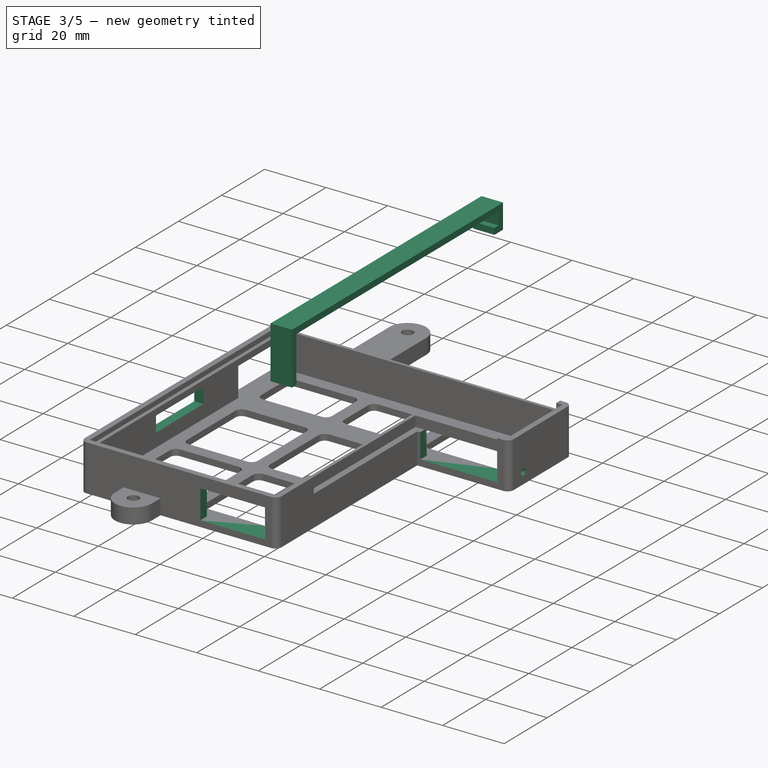
[diagram: stage 3 of 5 — iso view after this stage's code; geometry added in this stage tinted green]
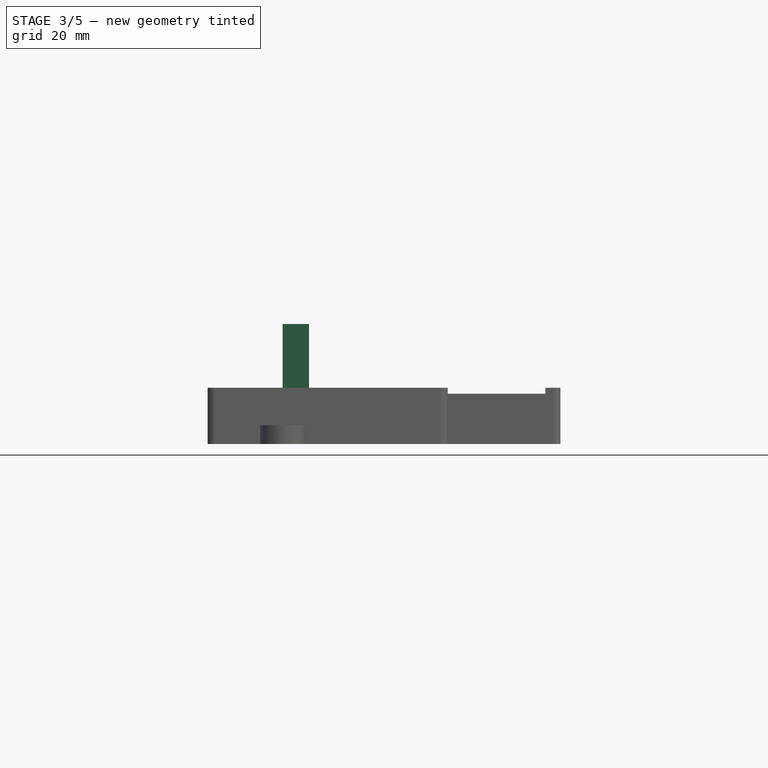
[diagram: stage 3 of 5 — front view after this stage's code; geometry added in this stage tinted green]
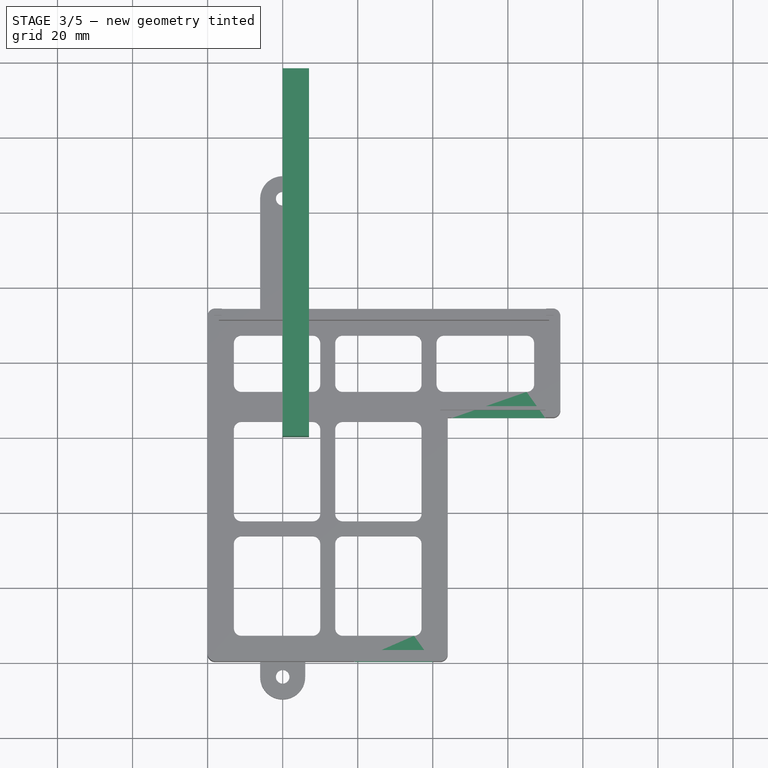
[diagram: stage 3 of 5 — top view after this stage's code; geometry added in this stage tinted green]
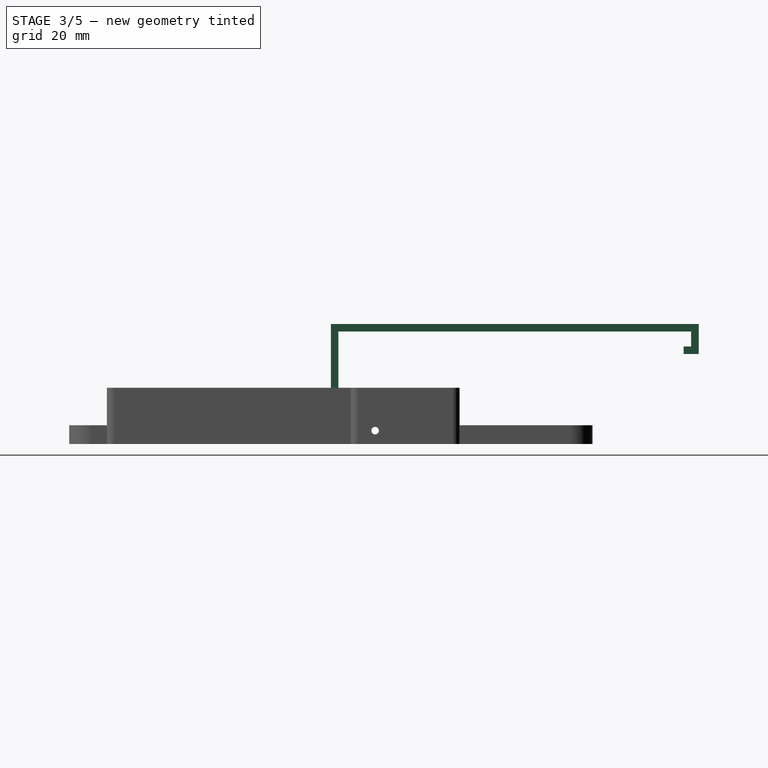
[diagram: stage 3 of 5 — right view after this stage's code; geometry added in this stage tinted green]
FEATURE [Sketcher::SketchObject] Sketch013  label="Vent2Sketch"
  ArcFitTolerance = 1e-06
  AttachmentSupport = -> [XZ_Plane001]
  ExternalGeometry = -> [Pocket010]
  FullyConstrained = true
  MakeInternals = false
  MapMode = 5
  Placement = pos=(0,0,0) rot=(1,0,0;1.5708rad)
  sketch-geometry (7):
    g0: LineSegment [constr] StartX=71 StartY=-13 StartZ=0 EndX=70 EndY=-13 EndZ=0
    g1: LineSegment [constr] StartX=44 StartY=-15 StartZ=0 EndX=45 EndY=-15 EndZ=0
    g2: LineSegment [constr] StartX=70 StartY=-1.6 StartZ=0 EndX=70 EndY=-5 EndZ=0
    g3: LineSegment StartX=70 StartY=-13 StartZ=0 EndX=70 EndY=-5 EndZ=0
    g4: LineSegment StartX=70 StartY=-13 StartZ=0 EndX=45 EndY=-13 EndZ=0
    g5: LineSegment StartX=70 StartY=-5 StartZ=0 EndX=45 EndY=-5 EndZ=0
    g6: LineSegment StartX=45 StartY=-5 StartZ=0 EndX=45 EndY=-13 EndZ=0
  constraints (20):
    c: Horizontal(g0)
    c: DistanceX(g0,g0) = 1
    c: Equal(g1,g0)
    c: Distance(g2) = 3.4
    c: Vertical(g2)
    c: Coincident(g3,g0)
    c: Vertical(g3)
    c: Horizontal(g2,g3)
    c: Coincident(g4,g0)
    c: Horizontal(g4)
    c: Vertical(g4,g1)
    c: Coincident(g5,g3)
    c: Horizontal(g5)
    c: Vertical(g5,g4)
    c: Coincident(g6,g5)
    c: Coincident(g6,g4)
    c: Coincident(g0,g-4)
    c: Coincident(g-5,g2)
    c: Coincident(g-3,g1)
    c: Horizontal(g1)
FEATURE [PartDesign::Pocket] Pocket011  label="Vent2Pocket"
  BaseFeature = -> Pocket010
  Direction = (0,1,-2e-16)
  Length = 10
  Length2 = 5
  Profile = -> Sketch013
  ReferenceAxis = -> Sketch013 [N_Axis]
  Refine = true
  Suppressed = false
  Type = 0
FEATURE [Sketcher::SketchObject] Sketch014  label="Vent3Sketch"
  ArcFitTolerance = 1e-06
  AttachmentSupport = -> [XZ_Plane001]
  ExternalGeometry = -> [Pocket011]
  FullyConstrained = true
  MakeInternals = false
  MapMode = 5
  Placement = pos=(0,0,0) rot=(1,0,0;1.5708rad)
  sketch-geometry (7):
    g0: LineSegment [constr] StartX=41 StartY=-1.6 StartZ=0 EndX=41 EndY=-3.6 EndZ=0
    g1: LineSegment [constr] StartX=41 StartY=-3.6 StartZ=0 EndX=40 EndY=-3.6 EndZ=0
    g2: LineSegment [constr] StartX=41 StartY=-13 StartZ=0 EndX=40 EndY=-13 EndZ=0
    g3: LineSegment StartX=40 StartY=-3.6 StartZ=0 EndX=40 EndY=-13 EndZ=0
    g4: LineSegment StartX=40 StartY=-13 StartZ=0 EndX=19 EndY=-13 EndZ=0
    g5: LineSegment StartX=40 StartY=-3.6 StartZ=0 EndX=19 EndY=-3.6 EndZ=0
    g6: LineSegment StartX=19 StartY=-3.6 StartZ=0 EndX=19 EndY=-13 EndZ=0
  constraints (19):
    c: Coincident(g0,g-5)
    c: DistanceY(g0,g0) = 2
    c: Coincident(g1,g0)
    c: Horizontal(g1)
    c: Coincident(g2,g-4)
    c: PointOnObject(g2,g-4)
    c: Equal(g2,g1)
    c: Vertical(g0,g0)
    c: Coincident(g3,g1)
    c: Coincident(g3,g2)
    c: Distance(g4) = 21
    c: Coincident(g4,g2)
    c: Horizontal(g4)
    c: Coincident(g5,g1)
    c: Horizontal(g5)
    c: Vertical(g5,g4)
    c: Coincident(g6,g5)
    c: Coincident(g6,g4)
    c: DistanceX(g2,g2) = 1
FEATURE [PartDesign::Pocket] Pocket012  label="Vent3Pocket"
  BaseFeature = -> Pocket011
  Direction = (0,1,-2e-16)
  Length = 60
  Length2 = 5
  Profile = -> Sketch014
  ReferenceAxis = -> Sketch014 [N_Axis]
  Refine = true
  Reversed = true
  Suppressed = false
  Type = 0
FEATURE [Sketcher::SketchObject] Sketch015  label="VentIcspSketch"
  ArcFitTolerance = 1e-06
  AttachmentSupport = -> [YZ_Plane001]
  ExternalGeometry = -> [Pocket012]
  FullyConstrained = true
  MakeInternals = false
  MapMode = 5
  Placement = pos=(0,0,0) rot=(0.57735,0.57735,0.57735;2.0944rad)
  sketch-geometry (6):
    g0: LineSegment [constr] StartX=-57.9159 StartY=-1.6 StartZ=0 EndX=-6.9159 EndY=-1.6 EndZ=0
    g1: LineSegment [constr] StartX=-6.9159 StartY=-1.6 StartZ=0 EndX=-6.9159 EndY=-3.6 EndZ=0
    g2: LineSegment StartX=-6.9159 StartY=-3.6 StartZ=0 EndX=-28.9159 EndY=-3.6 EndZ=0
    g3: LineSegment StartX=-28.9159 StartY=-3.6 StartZ=0 EndX=-28.9159 EndY=-8.6 EndZ=0
    g4: LineSegment StartX=-28.9159 StartY=-8.6 StartZ=0 EndX=-6.9159 EndY=-8.6 EndZ=0
    g5: LineSegment StartX=-6.9159 StartY=-8.6 StartZ=0 EndX=-6.9159 EndY=-3.6 EndZ=0
  constraints (17):
    c: Distance(g0) = 51
    c: Coincident(g0,g-3)
    c: Horizontal(g0)
    c: Distance(g1) = 2
    c: Coincident(g1,g0)
    c: Vertical(g1)
    c: Coincident(g2,g3)
    c: Coincident(g3,g4)
    c: Coincident(g4,g5)
    c: Coincident(g5,g2)
    c: Horizontal(g2)
    c: Horizontal(g4)
    c: Vertical(g3)
    c: Vertical(g5)
    c: Distance(g3,g5) = 22
    c: Distance(g2,g4) = 5
    c: Coincident(g2,g1)
FEATURE [PartDesign::Pocket] Pocket013  label="VentIcspPocket"
  BaseFeature = -> Pocket012
  Direction = (-1,0,0)
  Length = 5
  Length2 = 5
  Profile = -> Sketch015
  ReferenceAxis = -> Sketch015 [N_Axis]
  Refine = true
  Suppressed = false
  Type = 1
FEATURE [Sketcher::SketchObject] Sketch016  label="BraceSketch"
  ArcFitTolerance = 1e-06
  AttachmentSupport = -> [YZ_Plane002]
  FullyConstrained = true
  MakeInternals = false
  MapMode = 5
  Placement = pos=(0,0,0) rot=(0.57735,0.57735,0.57735;2.0944rad)
  sketch-geometry (13):
    g0: LineSegment StartX=0 StartY=0 StartZ=0 EndX=0 EndY=15 EndZ=0
    g1: LineSegment StartX=0 StartY=15 StartZ=0 EndX=0 EndY=17 EndZ=0
    g2: LineSegment StartX=0 StartY=0 StartZ=0 EndX=2 EndY=0 EndZ=0
    g3: LineSegment StartX=2 StartY=0 StartZ=0 EndX=2 EndY=15 EndZ=0
    g4: LineSegment StartX=2 StartY=15 StartZ=0 EndX=96 EndY=15 EndZ=0
    g5: LineSegment StartX=0 StartY=17 StartZ=0 EndX=2 EndY=17 EndZ=0
    g6: LineSegment StartX=2 StartY=17 StartZ=0 EndX=96 EndY=17 EndZ=0
    g7: LineSegment StartX=96 StartY=17 StartZ=0 EndX=98 EndY=17 EndZ=0
    g8: LineSegment StartX=96 StartY=15 StartZ=0 EndX=96 EndY=11 EndZ=0
    g9: LineSegment StartX=96 StartY=11 StartZ=0 EndX=94 EndY=11 EndZ=0
    g10: LineSegment StartX=94 StartY=11 StartZ=0 EndX=94 EndY=9 EndZ=0
    g11: LineSegment StartX=94 StartY=9 StartZ=0 EndX=98 EndY=9 EndZ=0
    g12: LineSegment StartX=98 StartY=17 StartZ=0 EndX=98 EndY=9 EndZ=0
  constraints (38):
    c: Distance(g0) = 15
    c: Coincident(g0,g-1)
    c: PointOnObject(g0,g-2)
    c: Distance(g1) = 2
    c: Coincident(g1,g0)
    c: Vertical(g1)
    c: Distance(g2) = 2
    c: Coincident(g2,g0)
    c: PointOnObject(g2,g-1)
    c: Coincident(g3,g2)
    c: Vertical(g3)
    c: Equal(g3,g0)
    c: Distance(g4) = 94
    c: Coincident(g4,g3)
    c: Horizontal(g4)
    c: Coincident(g5,g1)
    c: Horizontal(g5)
    c: Vertical(g5,g3)
    c: Coincident(g6,g5)
    c: Horizontal(g6)
    c: Vertical(g4,g6)
    c: Distance(g7) = 2
    c: Coincident(g7,g6)
    c: Horizontal(g7)
    c: Distance(g8) = 4
    c: Coincident(g8,g4)
    c: Vertical(g8)
    c: Distance(g9) = 2
    c: Coincident(g9,g8)
    c: Horizontal(g9)
    c: Distance(g10) = 2
    c: Coincident(g10,g9)
    c: Vertical(g10)
    c: Coincident(g11,g10)
    c: Horizontal(g11)
    c: Vertical(g11,g7)
    c: Coincident(g12,g7)
    c: Coincident(g12,g11)
FEATURE [PartDesign::Pad] Pad002  label="BracePad"
  Direction = (1,0,0)
  Length = 7
  Length2 = 10
  Placement = pos=(0,0,0) rot=(1,1,1;2.0944rad)
  Profile = -> Sketch016
  ReferenceAxis = -> Sketch016 [N_Axis]
  Refine = true
  Suppressed = false
  Type = 0
FEATURE [PartDesign::Body] Body002  label="MainControllerBrace"
  AllowCompound = false
  Group = -> [Sketch016,Pad002,Sketch017,Pocket014,Sketch018,Pocket015,Fillet002]
  Origin = -> Origin002
  Tip = -> Fillet002
FEATURE [Sketcher::SketchObject] Sketch019  label="BraceHoleSketch"
  ArcFitTolerance = 1e-06
  AttachmentSupport = -> [YZ_Plane001]
  ExternalGeometry = -> [Pocket013]
  FullyConstrained = true
  MakeInternals = false
  MapMode = 5
  Placement = pos=(0,0,0) rot=(0.57735,0.57735,0.57735;2.0944rad)
  sketch-geometry (3):
    g0: LineSegment [constr] StartX=8.2841 StartY=-15 StartZ=0 EndX=11.7841 EndY=-11.4293 EndZ=0
    g1: LineSegment [constr] StartX=11.7841 StartY=-11.4293 StartZ=0 EndX=15.2841 EndY=-15 EndZ=0
    g2: Circle CenterX=11.7841 CenterY=-11.4293 CenterZ=0 NormalX=0 NormalY=0 NormalZ=1 AngleXU=0 Radius=1
  constraints (9):
    c: Distance(g0) = 5
    c: Equal(g1,g0)
    c: Horizontal(g1,g0)
    c: DistanceX(g0,g1) = 7
    c: Diameter(g2) = 2
    c: Coincident(g2,g0)
    c: Horizontal(g0,g-3)
    c: Vertical(g0,g-4)
    c: Coincident(g1,g0)
FEATURE [PartDesign::Pocket] Pocket016  label="BraceHolePocket"
  BaseFeature = -> Pocket013
  Direction = (-1,0,0)
  Length = 87
  Length2 = 5
  Profile = -> Sketch019
  ReferenceAxis = -> Sketch019 [N_Axis]
  Refine = true
  Reversed = true
  Suppressed = false
  Type = 0
FEATURE [PartDesign::Body] Body001  label="MainController"
  AllowCompound = false
  Group = -> [Sketch003,Sketch004,Sketch005,Pad001,Pocket002,Pocket003,Sketch006,Pocket004,Fillet001,Sketch008,Pocket006,Sketch009,Pocket007,Sketch010,Pocket008,Sketch012,Pocket010,Sketch013,Pocket011,Sketch014,Pocket012,Sketch015,Pocket013,Sketch019,Pocket016]
  Origin = -> Origin001
  Tip = -> Pocket016
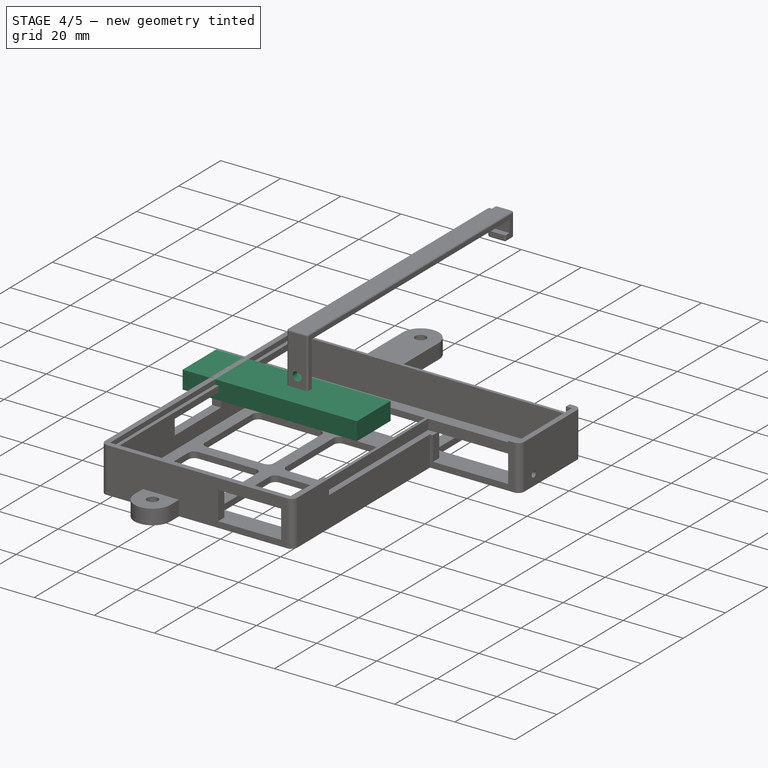
[diagram: stage 4 of 5 — iso view after this stage's code; geometry added in this stage tinted green]
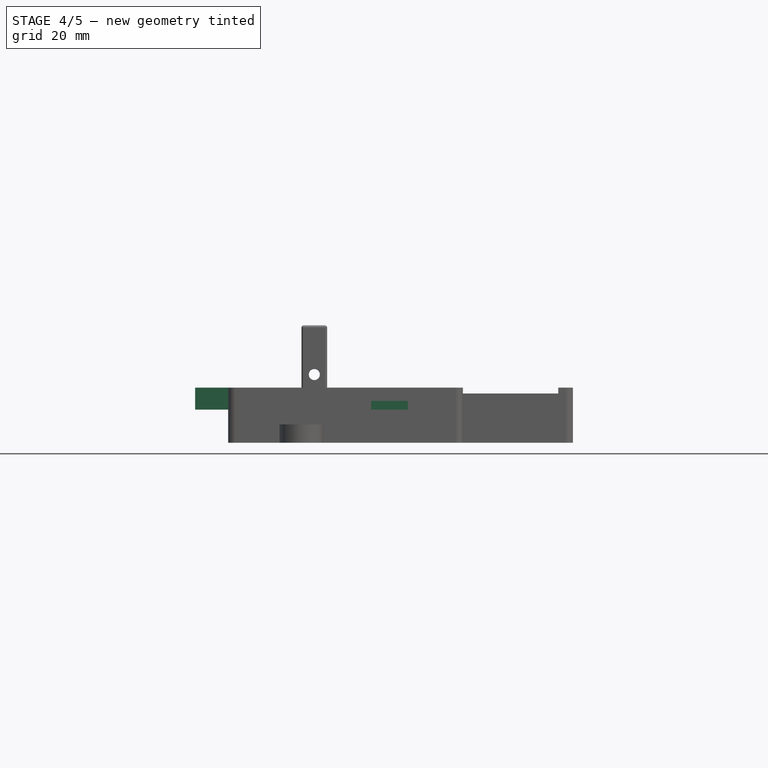
[diagram: stage 4 of 5 — front view after this stage's code; geometry added in this stage tinted green]
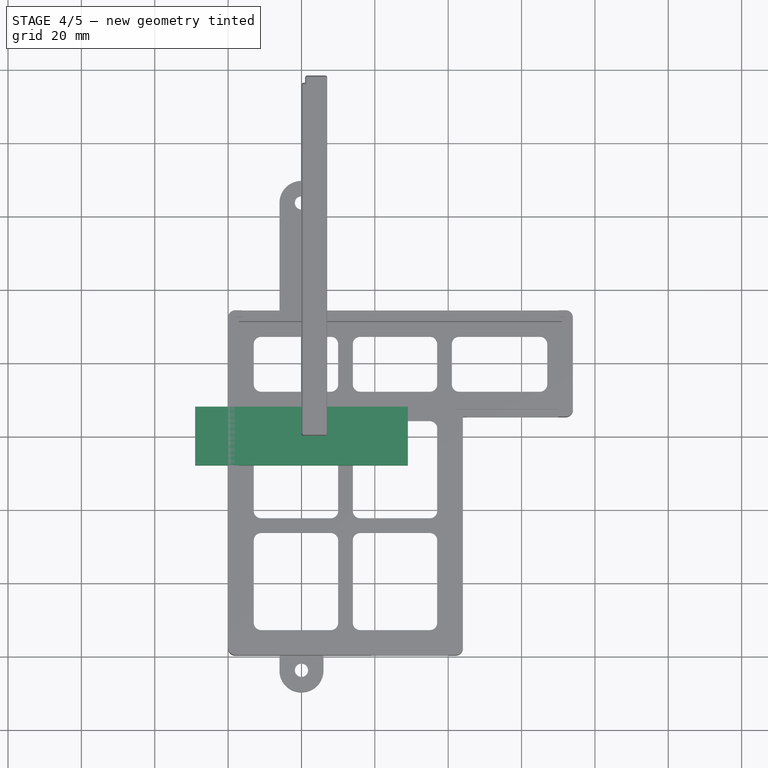
[diagram: stage 4 of 5 — top view after this stage's code; geometry added in this stage tinted green]
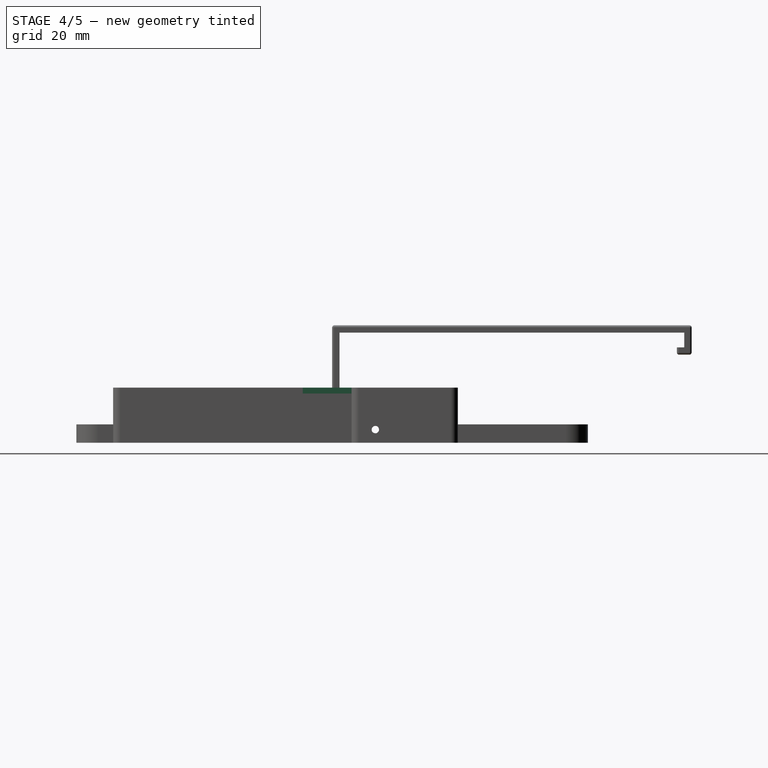
[diagram: stage 4 of 5 — right view after this stage's code; geometry added in this stage tinted green]
FEATURE [Sketcher::SketchObject] Sketch  label="FanControllerBoxSketch"
  ArcFitTolerance = 1e-06
  AttachmentSupport = -> [XY_Plane]
  FullyConstrained = true
  MakeInternals = false
  MapMode = 5
  sketch-geometry (4):
    g0: LineSegment StartX=-29 StartY=8 StartZ=0 EndX=-29 EndY=-8 EndZ=0
    g1: LineSegment StartX=-29 StartY=-8 StartZ=0 EndX=29 EndY=-8 EndZ=0
    g2: LineSegment StartX=29 StartY=-8 StartZ=0 EndX=29 EndY=8 EndZ=0
    g3: LineSegment StartX=29 StartY=8 StartZ=0 EndX=-29 EndY=8 EndZ=0
  constraints (11):
    c: Coincident(g0,g1)
    c: Coincident(g1,g2)
    c: Coincident(g2,g3)
    c: Coincident(g3,g0)
    c: Vertical(g0)
    c: Vertical(g2)
    c: Horizontal(g1)
    c: Horizontal(g3)
    c: DistanceX(g3,g3) = 58
    c: DistanceY(g0,g0) = 16
    c: Symmetric(g0,g1,g-1)
FEATURE [PartDesign::Pad] Pad  label="FanControllerBoxPad"
  Direction = (0,0,1)
  Length = 6
  Length2 = 10
  Profile = -> Sketch
  ReferenceAxis = -> Sketch [N_Axis]
  Refine = true
  Reversed = true
  Suppressed = false
  Type = 0
FEATURE [Sketcher::SketchObject] Sketch017  label="NotchSketch"
  ArcFitTolerance = 1e-06
  AttachmentSupport = -> [YZ_Plane002]
  ExternalGeometry = -> [Pad002]
  FullyConstrained = true
  MakeInternals = false
  MapMode = 5
  Placement = pos=(0,0,0) rot=(0.57735,0.57735,0.57735;2.0944rad)
  sketch-geometry (6):
    g0: LineSegment StartX=94 StartY=11 StartZ=0 EndX=94 EndY=9 EndZ=0
    g1: LineSegment StartX=94 StartY=9 StartZ=0 EndX=98 EndY=9 EndZ=0
    g2: LineSegment StartX=98 StartY=9 StartZ=0 EndX=98 EndY=17 EndZ=0
    g3: LineSegment StartX=94 StartY=11 StartZ=0 EndX=96 EndY=11 EndZ=0
    g4: LineSegment StartX=96 StartY=11 StartZ=0 EndX=96 EndY=17 EndZ=0
    g5: LineSegment StartX=96 StartY=17 StartZ=0 EndX=98 EndY=17 EndZ=0
  constraints (14):
    c: Coincident(g0,g-4)
    c: Coincident(g0,g-4)
    c: Coincident(g1,g0)
    c: Coincident(g1,g-6)
    c: Coincident(g2,g1)
    c: PointOnObject(g2,g-5)
    c: Horizontal(g2,g-5)
    c: Coincident(g3,g0)
    c: Coincident(g3,g-7)
    c: Coincident(g4,g3)
    c: Vertical(g4)
    c: Horizontal(g2,g4)
    c: Coincident(g5,g4)
    c: Coincident(g5,g2)
FEATURE [PartDesign::Pocket] Pocket014  label="NotchPocket"
  BaseFeature = -> Pad002
  Direction = (-1,0,0)
  Length = 1
  Length2 = 5
  Placement = pos=(0,0,0) rot=(1,1,1;2.0944rad)
  Profile = -> Sketch017
  ReferenceAxis = -> Sketch017 [N_Axis]
  Refine = true
  Reversed = true
  Suppressed = false
  Type = 0
FEATURE [Sketcher::SketchObject] Sketch018  label="HoleSketch"
  ArcFitTolerance = 1e-06
  AttachmentSupport = -> [XZ_Plane002]
  ExternalGeometry = -> [Pocket014]
  FullyConstrained = true
  MakeInternals = false
  MapMode = 5
  Placement = pos=(0,0,0) rot=(1,0,0;1.5708rad)
  sketch-geometry (3):
    g0: LineSegment [constr] StartX=0 StartY=0 StartZ=0 EndX=3.5 EndY=3.57071 EndZ=0
    g1: LineSegment [constr] StartX=3.5 StartY=3.57071 StartZ=0 EndX=7 EndY=0 EndZ=0
    g2: Circle CenterX=3.5 CenterY=3.57071 CenterZ=0 NormalX=0 NormalY=0 NormalZ=1 AngleXU=0 Radius=1.5
  constraints (7):
    c: Coincident(g0,g-1)
    c: Coincident(g1,g0)
    c: Coincident(g1,g-3)
    c: Equal(g0,g1)
    c: Diameter(g2) = 3
    c: Coincident(g2,g0)
    c: Distance(g0) = 5
FEATURE [PartDesign::Pocket] Pocket015  label="HolePocket"
  BaseFeature = -> Pocket014
  Direction = (0,1,-2e-16)
  Length = 5
  Length2 = 5
  Placement = pos=(0,0,0) rot=(1,1,1;2.0944rad)
  Profile = -> Sketch018
  ReferenceAxis = -> Sketch018 [N_Axis]
  Refine = true
  Suppressed = false
  Type = 0
FEATURE [PartDesign::Fillet] Fillet002
  Base = -> Pocket015 [Edge21,Edge30,Edge23,Edge13,Edge14,Edge3,Edge2,Edge1,Edge7,Edge22,Edge11,Edge6,Edge12,Edge15,Edge5,Edge4,Edge27]
  BaseFeature = -> Pocket015
  Placement = pos=(0,0,0) rot=(1,1,1;2.0944rad)
  Radius = 0.6
  Refine = true
  SupportTransform = false
  Suppressed = false
  UseAllEdges = false
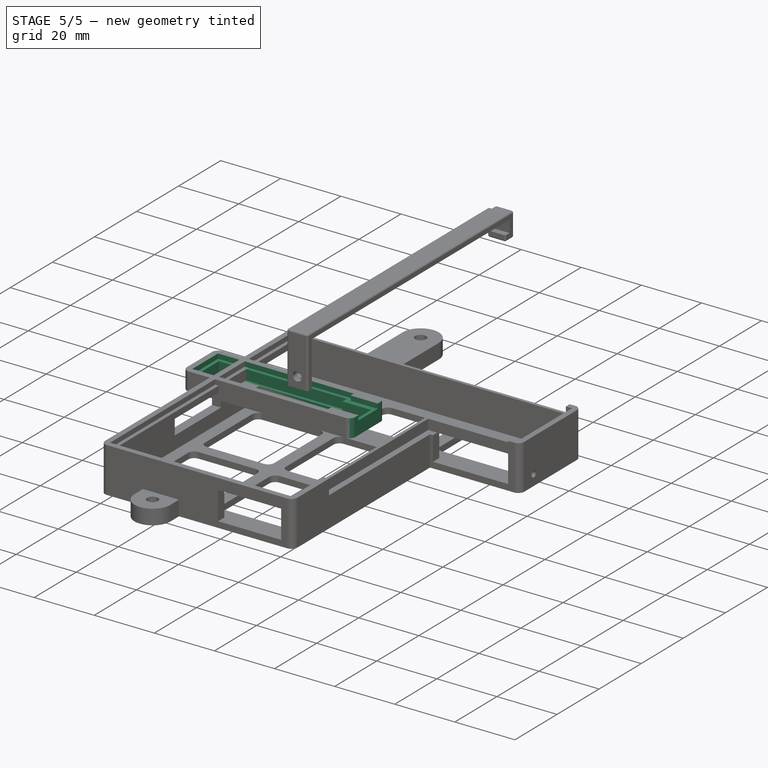
[diagram: stage 5 of 5 — iso view after this stage's code; geometry added in this stage tinted green]
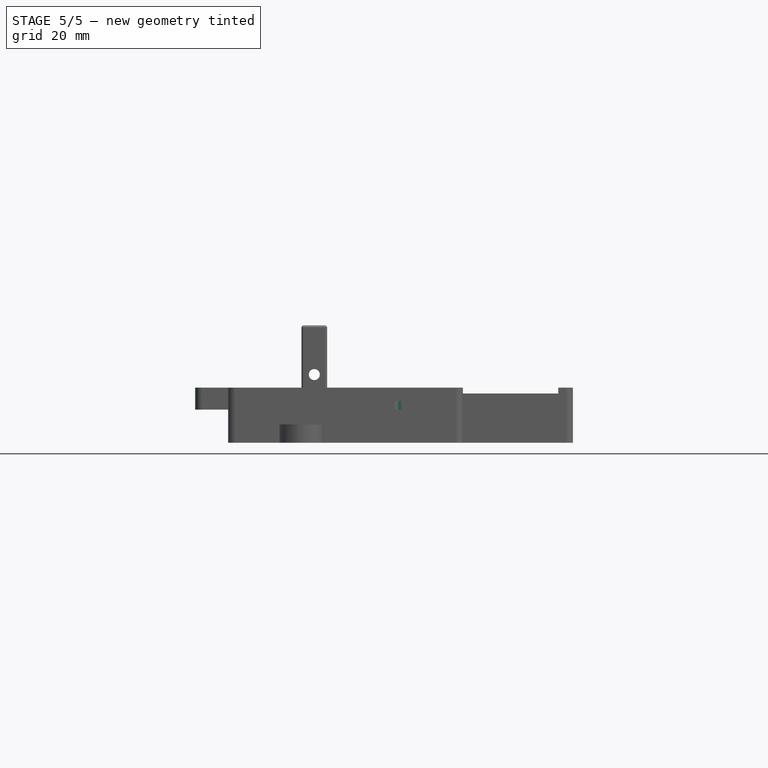
[diagram: stage 5 of 5 — front view after this stage's code; geometry added in this stage tinted green]
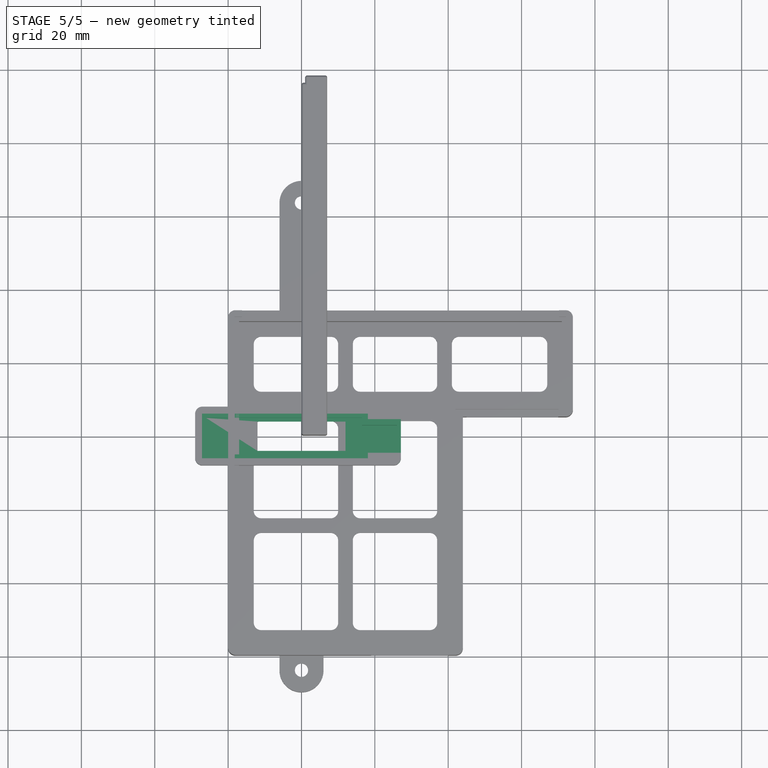
[diagram: stage 5 of 5 — top view after this stage's code; geometry added in this stage tinted green]
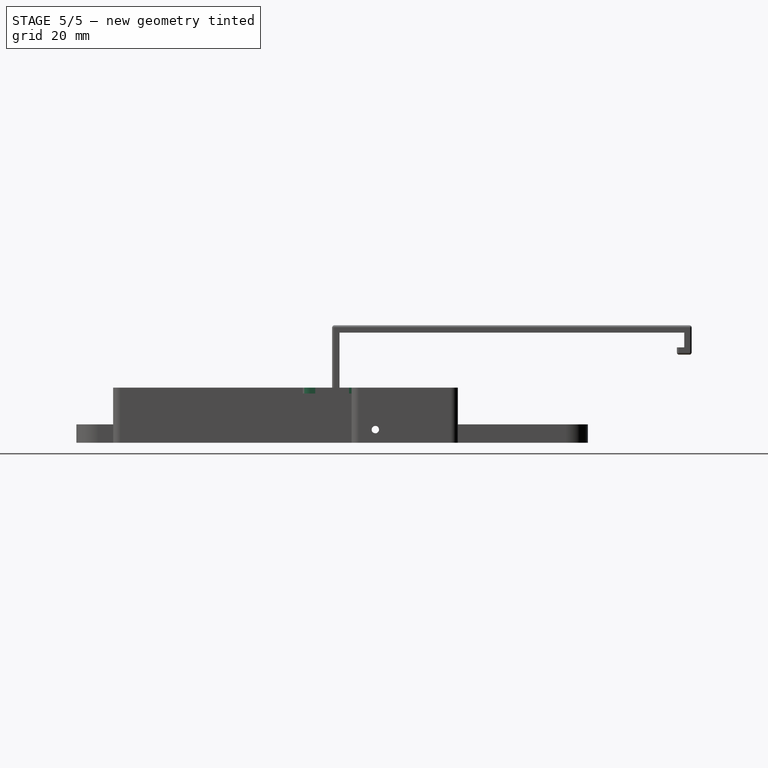
[diagram: stage 5 of 5 — right view after this stage's code; geometry added in this stage tinted green]
FEATURE [Sketcher::SketchObject] Sketch001  label="FanControllerEdgeSketch"
  ArcFitTolerance = 1e-06
  AttachmentSupport = -> [XY_Plane]
  FullyConstrained = true
  MakeInternals = false
  MapMode = 5
  sketch-geometry (13):
    g0: LineSegment StartX=-26 StartY=5 StartZ=0 EndX=-26 EndY=-5 EndZ=0
    g1: LineSegment [constr] StartX=-26 StartY=-5 StartZ=0 EndX=26 EndY=-5 EndZ=0
    g2: LineSegment [constr] StartX=26 StartY=-5 StartZ=0 EndX=26 EndY=5 EndZ=0
    g3: LineSegment [constr] StartX=26 StartY=5 StartZ=0 EndX=-26 EndY=5 EndZ=0
    g4: LineSegment [constr] StartX=26 StartY=5 StartZ=0 EndX=16.5 EndY=5 EndZ=0
    g5: LineSegment [constr] StartX=26 StartY=-5 StartZ=0 EndX=16.5 EndY=-5 EndZ=0
    g6: LineSegment StartX=16.5 StartY=5 StartZ=0 EndX=16.5 EndY=3 EndZ=0
    g7: LineSegment StartX=16.5 StartY=-5 StartZ=0 EndX=16.5 EndY=-3 EndZ=0
    g8: LineSegment StartX=16.5 StartY=3 StartZ=0 EndX=26 EndY=3 EndZ=0
    g9: LineSegment StartX=16.5 StartY=-3 StartZ=0 EndX=26 EndY=-3 EndZ=0
    g10: LineSegment StartX=26 StartY=3 StartZ=0 EndX=26 EndY=-3 EndZ=0
    g11: LineSegment StartX=-26 StartY=5 StartZ=0 EndX=16.5 EndY=5 EndZ=0
    g12: LineSegment StartX=16.5 StartY=-5 StartZ=0 EndX=-26 EndY=-5 EndZ=0
  constraints (35):
    c: Coincident(g0,g1)
    c: Coincident(g1,g2)
    c: Coincident(g2,g3)
    c: Coincident(g3,g0)
    c: Vertical(g0)
    c: Vertical(g2)
    c: Horizontal(g1)
    c: Horizontal(g3)
    c: Distance(g0,g2) = 52
    c: Distance(g1,g3) = 10
    c: Symmetric(g0,g1,g-1)
    c: Distance(g4) = 9.5
    c: Coincident(g4,g2)
    c: PointOnObject(g4,g3)
    c: Coincident(g5,g1)
    c: PointOnObject(g5,g1)
    c: Equal(g4,g5)
    c: Distance(g6) = 2
    c: Coincident(g6,g4)
    c: Vertical(g6)
    c: Coincident(g7,g5)
    c: Vertical(g7)
    c: Equal(g7,g6)
    c: Coincident(g8,g6)
    c: Horizontal(g8)
    c: Coincident(g9,g7)
    c: Horizontal(g9)
    c: Vertical(g8,g9)
    c: Vertical(g9,g1)
    c: Coincident(g10,g8)
    c: Coincident(g10,g9)
    c: Coincident(g11,g0)
    c: Coincident(g11,g4)
    c: Coincident(g12,g5)
    c: Coincident(g12,g0)
FEATURE [PartDesign::Pocket] Pocket  label="FanControllerEdgePocket"
  BaseFeature = -> Pad
  Direction = (0,0,-1)
  Length = 5
  Length2 = 5
  Profile = -> Sketch001
  ReferenceAxis = -> Sketch001 [N_Axis]
  Refine = true
  Suppressed = false
  Type = 0
FEATURE [Sketcher::SketchObject] Sketch002  label="FanControllerPCBSketch"
  ArcFitTolerance = 1e-06
  AttachmentSupport = -> [XY_Plane]
  FullyConstrained = true
  MakeInternals = false
  MapMode = 5
  sketch-geometry (13):
    g0: LineSegment StartX=-27.1 StartY=6.1 StartZ=0 EndX=-27.1 EndY=-6.1 EndZ=0
    g1: LineSegment [constr] StartX=-27.1 StartY=-6.1 StartZ=0 EndX=27.1 EndY=-6.1 EndZ=0
    g2: LineSegment [constr] StartX=27.1 StartY=-6.1 StartZ=0 EndX=27.1 EndY=6.1 EndZ=0
    g3: LineSegment [constr] StartX=27.1 StartY=6.1 StartZ=0 EndX=-27.1 EndY=6.1 EndZ=0
    g4: LineSegment [constr] StartX=27.1 StartY=6.1 StartZ=0 EndX=18.1 EndY=6.1 EndZ=0
    g5: LineSegment [constr] StartX=27.1 StartY=-6.1 StartZ=0 EndX=18.1 EndY=-6.1 EndZ=0
    g6: LineSegment StartX=18.1 StartY=6.1 StartZ=0 EndX=18.1 EndY=4.6 EndZ=0
    g7: LineSegment StartX=18.1 StartY=-6.1 StartZ=0 EndX=18.1 EndY=-4.6 EndZ=0
    g8: LineSegment StartX=18.1 StartY=4.6 StartZ=0 EndX=27.1 EndY=4.6 EndZ=0
    g9: LineSegment StartX=18.1 StartY=-4.6 StartZ=0 EndX=27.1 EndY=-4.6 EndZ=0
    g10: LineSegment StartX=27.1 StartY=-4.6 StartZ=0 EndX=27.1 EndY=4.6 EndZ=0
    g11: LineSegment StartX=18.1 StartY=6.1 StartZ=0 EndX=-27.1 EndY=6.1 EndZ=0
    g12: LineSegment StartX=-27.1 StartY=-6.1 StartZ=0 EndX=18.1 EndY=-6.1 EndZ=0
  constraints (35):
    c: Coincident(g0,g1)
    c: Coincident(g1,g2)
    c: Coincident(g2,g3)
    c: Coincident(g3,g0)
    c: Vertical(g0)
    c: Vertical(g2)
    c: Horizontal(g1)
    c: Horizontal(g3)
    c: Distance(g0,g2) = 54.2
    c: Distance(g1,g3) = 12.2
    c: Symmetric(g0,g1,g-1)
    c: Distance(g4) = 9
    c: Coincident(g4,g2)
    c: PointOnObject(g4,g3)
    c: Coincident(g5,g1)
    c: PointOnObject(g5,g1)
    c: Equal(g4,g5)
    c: Distance(g6) = 1.5
    c: Coincident(g6,g4)
    c: Vertical(g6)
    c: Coincident(g7,g5)
    c: Vertical(g7)
    c: Equal(g7,g6)
    c: Coincident(g8,g6)
    c: Horizontal(g8)
    c: Vertical(g8,g2)
    c: Coincident(g9,g7)
    c: Horizontal(g9)
    c: Vertical(g9,g1)
    c: Coincident(g10,g9)
    c: Coincident(g10,g8)
    c: Coincident(g11,g4)
    c: Coincident(g11,g0)
    c: Coincident(g12,g0)
    c: Coincident(g12,g5)
FEATURE [PartDesign::Pocket] Pocket001  label="FanControllerPCBPocket"
  BaseFeature = -> Pocket
  Direction = (0,0,-1)
  Length = 1.6
  Length2 = 5
  Profile = -> Sketch002
  ReferenceAxis = -> Sketch002 [N_Axis]
  Refine = true
  Suppressed = false
  Type = 0
FEATURE [Sketcher::SketchObject] Sketch007  label="FanControllerFingerHoleSketch"
  ArcFitTolerance = 1e-06
  AttachmentSupport = -> [XY_Plane]
  FullyConstrained = true
  MakeInternals = false
  MapMode = 5
  sketch-geometry (4):
    g0: LineSegment StartX=-12 StartY=4 StartZ=0 EndX=-12 EndY=-4 EndZ=0
    g1: LineSegment StartX=-12 StartY=-4 StartZ=0 EndX=12 EndY=-4 EndZ=0
    g2: LineSegment StartX=12 StartY=-4 StartZ=0 EndX=12 EndY=4 EndZ=0
    g3: LineSegment StartX=12 StartY=4 StartZ=0 EndX=-12 EndY=4 EndZ=0
  constraints (11):
    c: Coincident(g0,g1)
    c: Coincident(g1,g2)
    c: Coincident(g2,g3)
    c: Coincident(g3,g0)
    c: Vertical(g0)
    c: Vertical(g2)
    c: Horizontal(g1)
    c: Horizontal(g3)
    c: Distance(g0,g2) = 24
    c: DistanceY(g2,g2) = 8
    c: Symmetric(g1,g0,g-1)
FEATURE [PartDesign::Pocket] Pocket005  label="FanControllerFingerHolePocket"
  BaseFeature = -> Pocket001
  Direction = (0,0,-1)
  Length = 5
  Length2 = 5
  Profile = -> Sketch007
  ReferenceAxis = -> Sketch007 [N_Axis]
  Refine = true
  Suppressed = false
  Type = 1
FEATURE [Sketcher::SketchObject] Sketch011  label="FanControllerEdgeReductionSketch"
  ArcFitTolerance = 1e-06
  AttachmentSupport = -> [XY_Plane]
  ExternalGeometry = -> [Pocket005]
  FullyConstrained = true
  MakeInternals = false
  MapMode = 5
  sketch-geometry (4):
    g0: LineSegment StartX=27.1 StartY=8 StartZ=0 EndX=27.1 EndY=-8 EndZ=0
    g1: LineSegment StartX=27.1 StartY=-8 StartZ=0 EndX=29.1 EndY=-8 EndZ=0
    g2: LineSegment StartX=29.1 StartY=-8 StartZ=0 EndX=29.1 EndY=8 EndZ=0
    g3: LineSegment StartX=29.1 StartY=8 StartZ=0 EndX=27.1 EndY=8 EndZ=0
  constraints (11):
    c: Coincident(g0,g1)
    c: Coincident(g1,g2)
    c: Coincident(g2,g3)
    c: Coincident(g3,g0)
    c: Vertical(g2)
    c: Horizontal(g1)
    c: Horizontal(g3)
    c: Distance(g0,g2) = 2
    c: Distance(g1,g3) = 16
    c: Vertical(g0,g-3)
    c: Symmetric(g0,g0,g-1)
FEATURE [PartDesign::Pocket] Pocket009  label="FanControllerEdgeReductionPocket"
  BaseFeature = -> Pocket005
  Direction = (0,0,-1)
  Length = 10
  Length2 = 5
  Profile = -> Sketch011
  ReferenceAxis = -> Sketch011 [N_Axis]
  Refine = true
  Suppressed = false
  Type = 0
FEATURE [PartDesign::Fillet] Fillet
  Base = -> Pocket009 [Edge9,Edge7,Edge2,Edge1]
  BaseFeature = -> Pocket009
  Radius = 2
  Refine = true
  SupportTransform = false
  Suppressed = false
  UseAllEdges = false
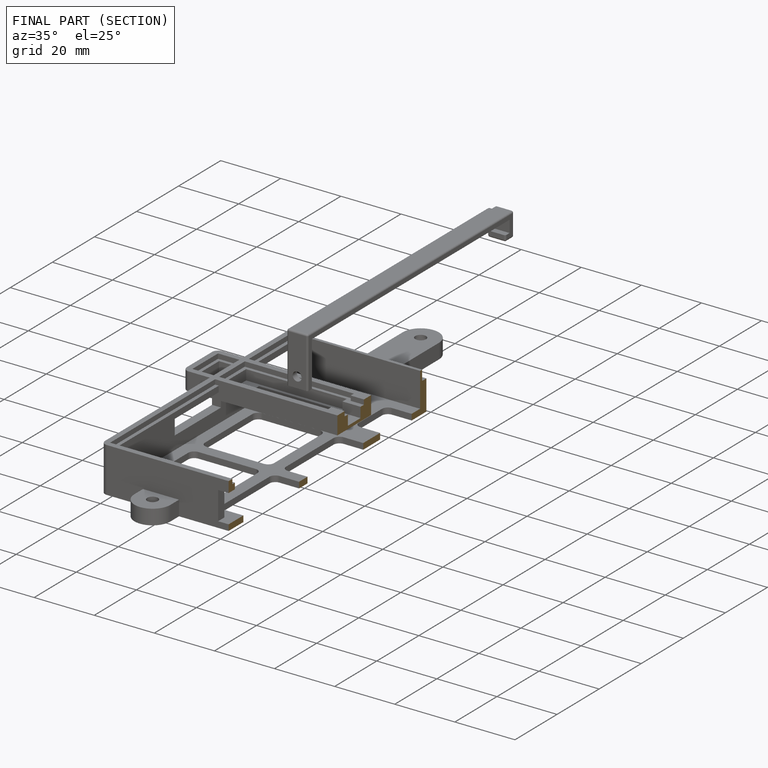
[diagram: finished part — half-section view (interior)]
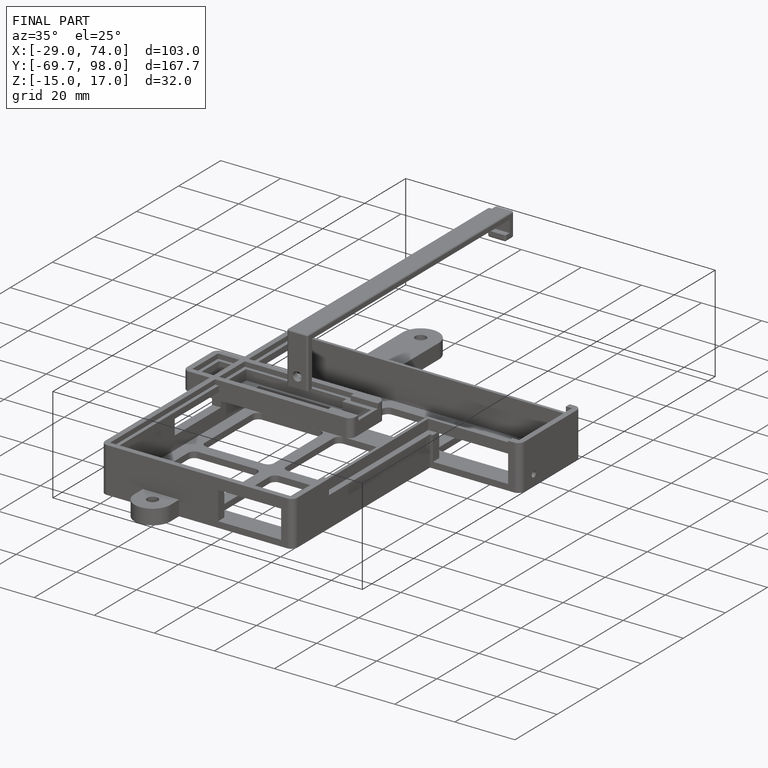
[diagram: finished part — iso view with bounding-box wireframe]
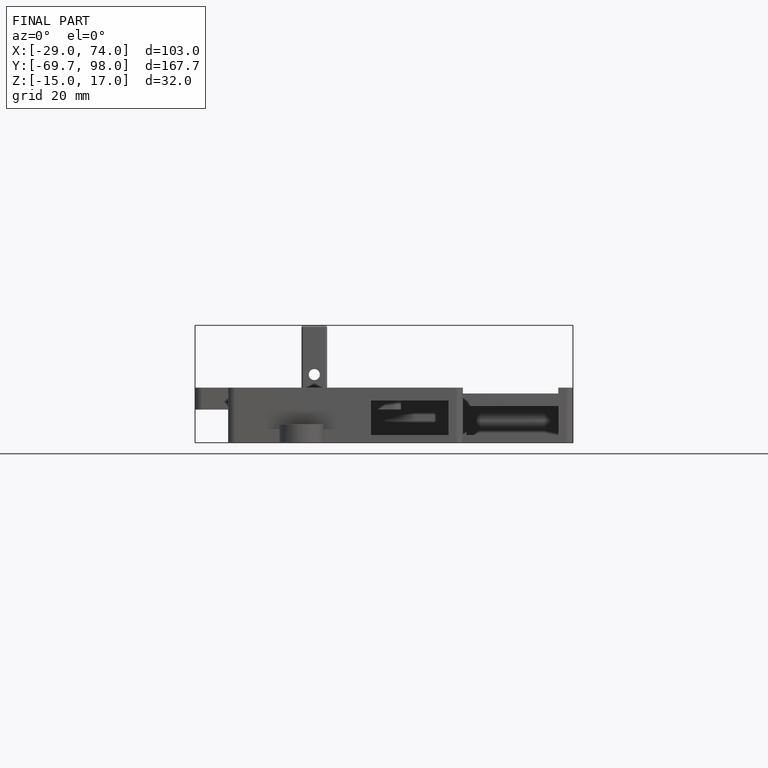
[diagram: finished part — front view with bounding-box wireframe]
